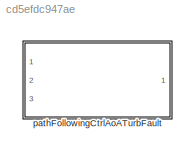
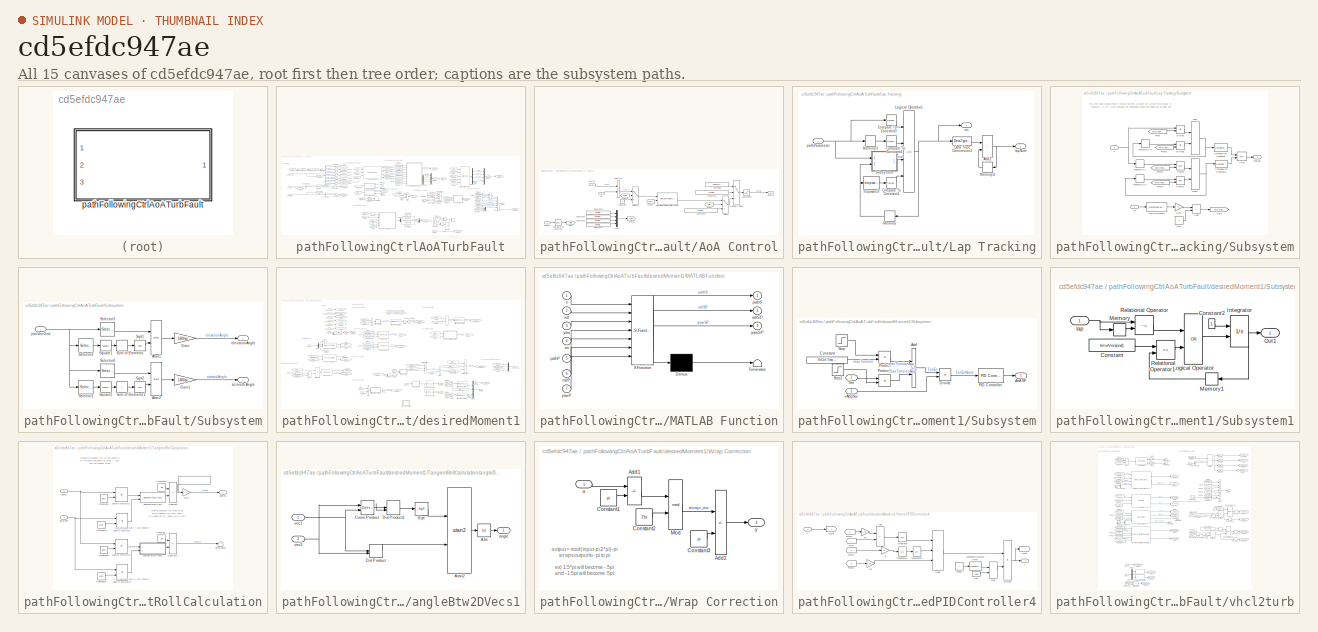
[diagram: thumbnail index - all 15 canvases of the model, root first then tree order]
MODEL slx_cd5efdc947ae
KIND library
CONFIG AbsTol = auto
CONFIG EnableMultiTasking = off
CONFIG FixedStep = auto
CONFIG MaxStep = auto
CONFIG MinStep = auto
CONFIG RelTol = 1e-3
CONFIG SampleTimeConstraint = Unconstrained
CONFIG Solver = VariableStepAuto
CONFIG SolverName = VariableStepAuto
CONFIG StartTime = 0.0
CONFIG StopTime = 10.0
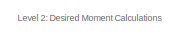
[diagram: pathFollowingCtrlAoATurbFault - part 1/4, top center region]
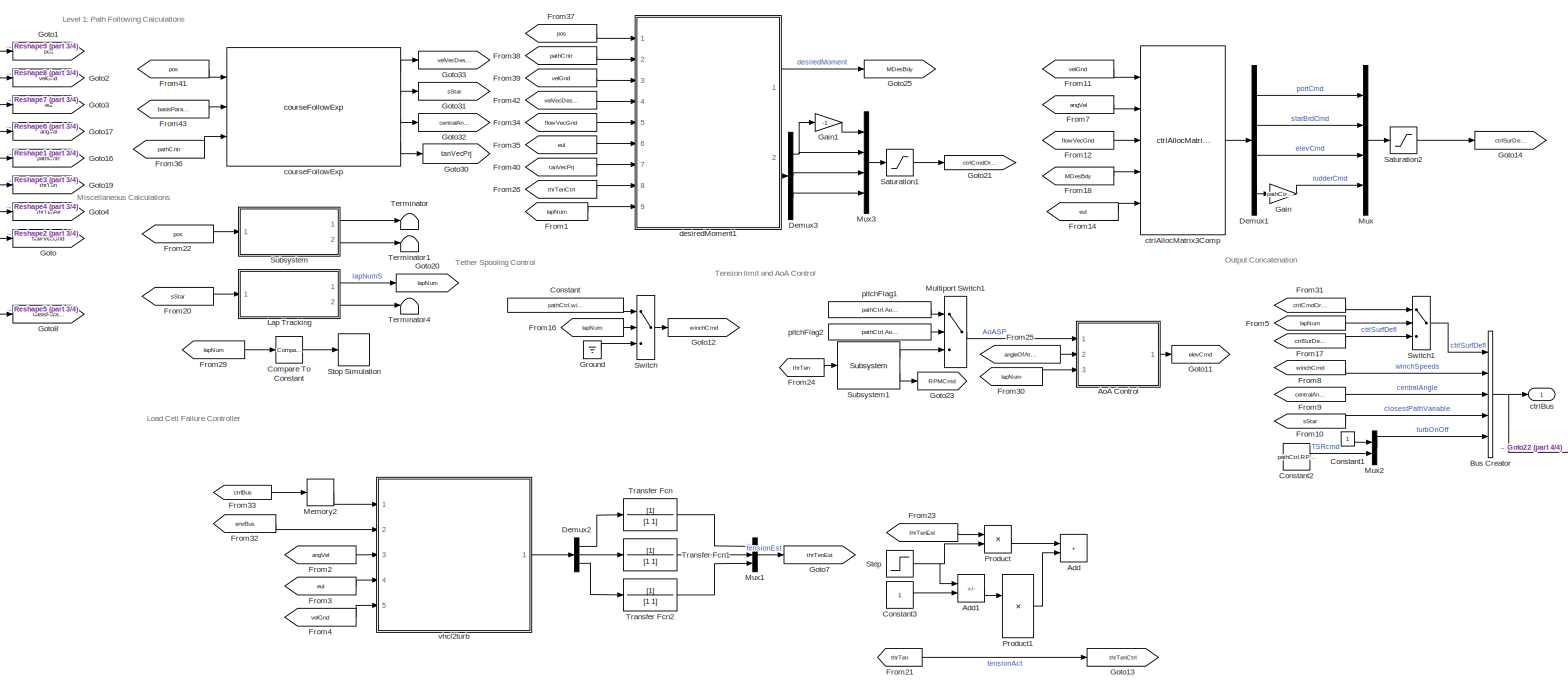
[diagram: pathFollowingCtrlAoATurbFault - part 2/4, center side, full height]
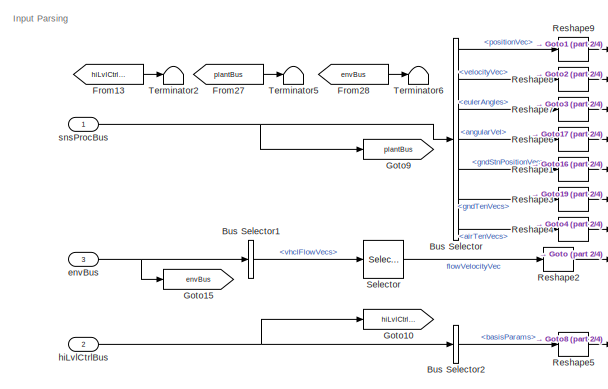
[diagram: pathFollowingCtrlAoATurbFault - part 3/4, top left region]
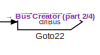
[diagram: pathFollowingCtrlAoATurbFault - part 4/4, bottom right region]
BLOCK [SubSystem] pathFollowingCtrlAoATurbFault
  InitFcn = initializeBussesFromBlock(gcb)
  LoadFcn = initializeBussesFromBlock(gcb)
  MinAlgLoopOccurrences = on
  Ports = [3, 1]
  RequestExecContextInheritance = off
  StartFcn = initializeBussesFromBlock(gcb)
  VariantControl = strcmpi(FLIGHTCONTROLLER,'pathFollowingControllerManta')
BLOCK [Sum] pathFollowingCtrlAoATurbFault/Add
  Commented = on
  IconShape = rectangular
  Ports = [2, 1]
BLOCK [Sum] pathFollowingCtrlAoATurbFault/Add1
  Commented = on
  IconShape = rectangular
  Inputs = -+
  Ports = [2, 1]
BLOCK [SubSystem] pathFollowingCtrlAoATurbFault/AoA Control
  Commented = on
  Ports = [3, 1]
  RequestExecContextInheritance = off
BLOCK [Inport] pathFollowingCtrlAoATurbFault/AoA Control/AoA
  Port = 2
BLOCK [Inport] pathFollowingCtrlAoATurbFault/AoA Control/AoA SP
BLOCK [Reference] pathFollowingCtrlAoATurbFault/AoA Control/Compare To Constant  REF=simulink/Logic and Bit
Operations/Compare
To Constant
  Ports = [1, 1]
  SourceBlock = simulink/Logic and Bit\nOperations/Compare\nTo Constant
  SourceProductBaseCode = SL
  SourceType = Compare To Constant
BLOCK [Constant] pathFollowingCtrlAoATurbFault/AoA Control/Constant
  Value = 0
BLOCK [Constant] pathFollowingCtrlAoATurbFault/AoA Control/Constant1
  Value = pathCtrl.elevatorConst.Value
BLOCK [Constant] pathFollowingCtrlAoATurbFault/AoA Control/Constant2
  Value = pathCtrl.elevatorConst.Value
BLOCK [Constant] pathFollowingCtrlAoATurbFault/AoA Control/Constant3
  Value = pathCtrl.elevCtrl.kp.Value
BLOCK [Constant] pathFollowingCtrlAoATurbFault/AoA Control/Constant4
  Value = pathCtrl.elevCtrl.ki.Value
BLOCK [Constant] pathFollowingCtrlAoATurbFault/AoA Control/Constant5
  Value = pathCtrl.elevCtrl.kd.Value
BLOCK [Constant] pathFollowingCtrlAoATurbFault/AoA Control/Constant6
  Value = pathCtrl.elevCtrl.tau.Value
BLOCK [From] pathFollowingCtrlAoATurbFault/AoA Control/From
  GotoTag = switch
BLOCK [From] pathFollowingCtrlAoATurbFault/AoA Control/From1
  GotoTag = switch
BLOCK [From] pathFollowingCtrlAoATurbFault/AoA Control/From2
  GotoTag = gains
BLOCK [Goto] pathFollowingCtrlAoATurbFault/AoA Control/Goto
  GotoTag = switch
BLOCK [Goto] pathFollowingCtrlAoATurbFault/AoA Control/Goto1
  GotoTag = gains
BLOCK [MultiPortSwitch] pathFollowingCtrlAoATurbFault/AoA Control/Multiport Switch
  DataPortIndices = {0,1}
  DataPortOrder = Specify indices
  InputSameDT = off
  Inputs = 2
  Ports = [3, 1]
  SaturateOnIntegerOverflow = off
BLOCK [Mux] pathFollowingCtrlAoATurbFault/AoA Control/Mux
  DisplayOption = bar
  Ports = [4, 1]
BLOCK [Saturate] pathFollowingCtrlAoATurbFault/AoA Control/Saturation
  LowerLimit = pathCtrl.elevCtrlMax.lowerLimit.Value
  UpperLimit = pathCtrl.elevCtrlMax.upperLimit.Value
BLOCK [Sum] pathFollowingCtrlAoATurbFault/AoA Control/Subtract
  IconShape = rectangular
  Inputs = -+
  Ports = [2, 1]
BLOCK [Switch] pathFollowingCtrlAoATurbFault/AoA Control/Switch
  Criteria = u2 > Threshold
  InputSameDT = off
  SaturateOnIntegerOverflow = off
  Threshold = .5
BLOCK [Switch] pathFollowingCtrlAoATurbFault/AoA Control/Switch1
  Criteria = u2 > Threshold
  InputSameDT = off
  SaturateOnIntegerOverflow = off
  Threshold = .5
BLOCK [Outport] pathFollowingCtrlAoATurbFault/AoA Control/elvCmd
BLOCK [Reference] pathFollowingCtrlAoATurbFault/AoA Control/filteredPIDControllerAWGS  REF=filteredPIDControllerAWGS_ul/filteredPIDControllerAWGS
  Ports = [2, 1]
  SourceBlock = filteredPIDControllerAWGS_ul/filteredPIDControllerAWGS
BLOCK [Inport] pathFollowingCtrlAoATurbFault/AoA Control/lapNum
  Port = 3
BLOCK [Constant] pathFollowingCtrlAoATurbFault/AoA Control/pitchFlag
  Value = pathCtrl.AoACtrl.Value
BLOCK [BusCreator] pathFollowingCtrlAoATurbFault/Bus Creator
  DisplayOption = bar
  InheritFromInputs = on
  Inputs = 5
  Ports = [5, 1]
BLOCK [BusSelector] pathFollowingCtrlAoATurbFault/Bus Selector
  OutputSignals = positionVec,velocityVec,eulerAngles,angularVel,gndStnPositionVec,gndTenVecs,airTenVecs
  Ports = [1, 7]
BLOCK [BusSelector] pathFollowingCtrlAoATurbFault/Bus Selector1
  OutputSignals = vhclFlowVecs
  Ports = [1, 1]
BLOCK [BusSelector] pathFollowingCtrlAoATurbFault/Bus Selector2
  OutputSignals = basisParams
  Ports = [1, 1]
BLOCK [Reference] pathFollowingCtrlAoATurbFault/Compare To Constant  REF=simulink/Logic and Bit
Operations/Compare
To Constant
  Ports = [1, 1]
  SourceBlock = simulink/Logic and Bit\nOperations/Compare\nTo Constant
  SourceProductBaseCode = SL
  SourceType = Compare To Constant
BLOCK [Constant] pathFollowingCtrlAoATurbFault/Constant
  Value = pathCtrl.winchSpeedIn.Value
BLOCK [Constant] pathFollowingCtrlAoATurbFault/Constant1
BLOCK [Constant] pathFollowingCtrlAoATurbFault/Constant2
  Value = pathCtrl.RPMConst.Value
BLOCK [Constant] pathFollowingCtrlAoATurbFault/Constant3
  Commented = on
BLOCK [Demux] pathFollowingCtrlAoATurbFault/Demux1
  Ports = [1, 4]
BLOCK [Demux] pathFollowingCtrlAoATurbFault/Demux2
  Commented = on
  Outputs = 3
  Ports = [1, 3]
BLOCK [Demux] pathFollowingCtrlAoATurbFault/Demux3
  Outputs = 3
  Ports = [1, 3]
BLOCK [From] pathFollowingCtrlAoATurbFault/From1
  GotoTag = lapNum
BLOCK [From] pathFollowingCtrlAoATurbFault/From10
  GotoTag = sStar
BLOCK [From] pathFollowingCtrlAoATurbFault/From11
  GotoTag = velGnd
BLOCK [From] pathFollowingCtrlAoATurbFault/From12
  GotoTag = flowVecGnd
BLOCK [From] pathFollowingCtrlAoATurbFault/From13
  GotoTag = hiLvlCtrlBus
BLOCK [From] pathFollowingCtrlAoATurbFault/From14
  GotoTag = eul
BLOCK [From] pathFollowingCtrlAoATurbFault/From16
  GotoTag = lapNum
BLOCK [From] pathFollowingCtrlAoATurbFault/From17
  GotoTag = ctrlSurDefl
BLOCK [From] pathFollowingCtrlAoATurbFault/From18
  GotoTag = MDesBdy
BLOCK [From] pathFollowingCtrlAoATurbFault/From2
  Commented = on
  GotoTag = angVel
BLOCK [From] pathFollowingCtrlAoATurbFault/From20
  GotoTag = sStar
BLOCK [From] pathFollowingCtrlAoATurbFault/From21
  GotoTag = thrTen
BLOCK [From] pathFollowingCtrlAoATurbFault/From22
  GotoTag = pos
BLOCK [From] pathFollowingCtrlAoATurbFault/From23
  Commented = on
  GotoTag = thrTenEst
BLOCK [From] pathFollowingCtrlAoATurbFault/From24
  Commented = on
  GotoTag = thrTen
BLOCK [From] pathFollowingCtrlAoATurbFault/From25
  Commented = on
  GotoTag = angleOfAttack
BLOCK [From] pathFollowingCtrlAoATurbFault/From26
  GotoTag = thrTenCtrl
BLOCK [From] pathFollowingCtrlAoATurbFault/From27
  GotoTag = plantBus
BLOCK [From] pathFollowingCtrlAoATurbFault/From28
  GotoTag = envBus
BLOCK [From] pathFollowingCtrlAoATurbFault/From29
  GotoTag = lapNum
BLOCK [From] pathFollowingCtrlAoATurbFault/From3
  Commented = on
  GotoTag = eul
BLOCK [From] pathFollowingCtrlAoATurbFault/From30
  Commented = on
  GotoTag = lapNum
BLOCK [From] pathFollowingCtrlAoATurbFault/From31
  GotoTag = ctrlCmdOrient
BLOCK [From] pathFollowingCtrlAoATurbFault/From32
  Commented = on
  GotoTag = envBus
BLOCK [From] pathFollowingCtrlAoATurbFault/From33
  Commented = on
  GotoTag = ctrlBus
BLOCK [From] pathFollowingCtrlAoATurbFault/From34
  GotoTag = flowVecGnd
BLOCK [From] pathFollowingCtrlAoATurbFault/From35
  GotoTag = eul
BLOCK [From] pathFollowingCtrlAoATurbFault/From36
  GotoTag = pathCntr
BLOCK [From] pathFollowingCtrlAoATurbFault/From37
  GotoTag = pos
BLOCK [From] pathFollowingCtrlAoATurbFault/From38
  GotoTag = pathCntr
BLOCK [From] pathFollowingCtrlAoATurbFault/From39
  GotoTag = velGnd
BLOCK [From] pathFollowingCtrlAoATurbFault/From4
  Commented = on
  GotoTag = velGnd
BLOCK [From] pathFollowingCtrlAoATurbFault/From40
  GotoTag = tanVecPrj
BLOCK [From] pathFollowingCtrlAoATurbFault/From41
  GotoTag = pos
BLOCK [From] pathFollowingCtrlAoATurbFault/From42
  GotoTag = velVecDesGnd
BLOCK [From] pathFollowingCtrlAoATurbFault/From43
  GotoTag = basisParams
BLOCK [From] pathFollowingCtrlAoATurbFault/From5
  GotoTag = lapNum
BLOCK [From] pathFollowingCtrlAoATurbFault/From7
  GotoTag = angVel
BLOCK [From] pathFollowingCtrlAoATurbFault/From8
  GotoTag = winchCmd
BLOCK [From] pathFollowingCtrlAoATurbFault/From9
  GotoTag = centralAngle
BLOCK [Gain] pathFollowingCtrlAoATurbFault/Gain
  Gain = pathCtrl.rudderGain.Value
BLOCK [Gain] pathFollowingCtrlAoATurbFault/Gain1
  Gain = -1
BLOCK [Goto] pathFollowingCtrlAoATurbFault/Goto
  GotoTag = flowVecGnd
BLOCK [Goto] pathFollowingCtrlAoATurbFault/Goto1
  GotoTag = pos
BLOCK [Goto] pathFollowingCtrlAoATurbFault/Goto10
  GotoTag = hiLvlCtrlBus
BLOCK [Goto] pathFollowingCtrlAoATurbFault/Goto11
  Commented = on
  GotoTag = elevCmd
BLOCK [Goto] pathFollowingCtrlAoATurbFault/Goto12
  GotoTag = winchCmd
BLOCK [Goto] pathFollowingCtrlAoATurbFault/Goto13
  GotoTag = thrTenCtrl
BLOCK [Goto] pathFollowingCtrlAoATurbFault/Goto14
  GotoTag = ctrlSurDefl
BLOCK [Goto] pathFollowingCtrlAoATurbFault/Goto15
  GotoTag = envBus
BLOCK [Goto] pathFollowingCtrlAoATurbFault/Goto16
  GotoTag = pathCntr
BLOCK [Goto] pathFollowingCtrlAoATurbFault/Goto17
  GotoTag = angVel
BLOCK [Goto] pathFollowingCtrlAoATurbFault/Goto19
  GotoTag = thrTen
BLOCK [Goto] pathFollowingCtrlAoATurbFault/Goto2
  GotoTag = velGnd
BLOCK [Goto] pathFollowingCtrlAoATurbFault/Goto20
  GotoTag = lapNum
BLOCK [Goto] pathFollowingCtrlAoATurbFault/Goto21
  GotoTag = ctrlCmdOrient
BLOCK [Goto] pathFollowingCtrlAoATurbFault/Goto22
  Commented = on
  GotoTag = ctrlBus
BLOCK [Goto] pathFollowingCtrlAoATurbFault/Goto23
  Commented = on
  GotoTag = RPMCmd
BLOCK [Goto] pathFollowingCtrlAoATurbFault/Goto25
  GotoTag = MDesBdy
BLOCK [Goto] pathFollowingCtrlAoATurbFault/Goto3
  GotoTag = eul
BLOCK [Goto] pathFollowingCtrlAoATurbFault/Goto30
  GotoTag = tanVecPrj
BLOCK [Goto] pathFollowingCtrlAoATurbFault/Goto31
  GotoTag = sStar
BLOCK [Goto] pathFollowingCtrlAoATurbFault/Goto32
  GotoTag = centralAngle
BLOCK [Goto] pathFollowingCtrlAoATurbFault/Goto33
  GotoTag = velVecDesGnd
BLOCK [Goto] pathFollowingCtrlAoATurbFault/Goto4
  Commented = on
  GotoTag = thrTenAir
BLOCK [Goto] pathFollowingCtrlAoATurbFault/Goto7
  Commented = on
  GotoTag = thrTenEst
BLOCK [Goto] pathFollowingCtrlAoATurbFault/Goto8
  GotoTag = basisParams
BLOCK [Goto] pathFollowingCtrlAoATurbFault/Goto9
  GotoTag = plantBus
BLOCK [Ground] pathFollowingCtrlAoATurbFault/Ground
BLOCK [SubSystem] pathFollowingCtrlAoATurbFault/Lap Tracking
  Ports = [1, 2]
  RequestExecContextInheritance = off
BLOCK [Sum] pathFollowingCtrlAoATurbFault/Lap Tracking/Add2
  IconShape = rectangular
  Ports = [2, 1]
BLOCK [Reference] pathFollowingCtrlAoATurbFault/Lap Tracking/Compare To Constant1  REF=simulink/Logic and Bit
Operations/Compare
To Constant
  Ports = [1, 1]
  SourceBlock = simulink/Logic and Bit\nOperations/Compare\nTo Constant
  SourceProductBaseCode = SL
  SourceType = Compare To Constant
BLOCK [Reference] pathFollowingCtrlAoATurbFault/Lap Tracking/Compare To Constant3  REF=simulink/Logic and Bit
Operations/Compare
To Constant
  Ports = [1, 1]
  SourceBlock = simulink/Logic and Bit\nOperations/Compare\nTo Constant
  SourceProductBaseCode = SL
  SourceType = Compare To Constant
BLOCK [Reference] pathFollowingCtrlAoATurbFault/Lap Tracking/Compare To Constant4  REF=simulink/Logic and Bit
Operations/Compare
To Constant
  Ports = [1, 1]
  SourceBlock = simulink/Logic and Bit\nOperations/Compare\nTo Constant
  SourceProductBaseCode = SL
  SourceType = Compare To Constant
BLOCK [DataTypeConversion] pathFollowingCtrlAoATurbFault/Lap Tracking/Data Type Conversion2
  OutDataTypeStr = double
  RndMeth = Floor
  SaturateOnIntegerOverflow = off
BLOCK [Logic] pathFollowingCtrlAoATurbFault/Lap Tracking/Logical Operator1
  AllPortsSameDT = off
  Inputs = 4
  OutDataTypeStr = boolean
  Ports = [4, 1]
BLOCK [Memory] pathFollowingCtrlAoATurbFault/Lap Tracking/Memory
  InitialCondition = false
BLOCK [Memory] pathFollowingCtrlAoATurbFault/Lap Tracking/Memory3
BLOCK [Memory] pathFollowingCtrlAoATurbFault/Lap Tracking/Memory4
BLOCK [SubSystem] pathFollowingCtrlAoATurbFault/Lap Tracking/Subsystem
  Ports = [2, 1]
  RequestExecContextInheritance = off
BLOCK [Logic] pathFollowingCtrlAoATurbFault/Lap Tracking/Subsystem/AND
  AllPortsSameDT = off
  OutDataTypeStr = boolean
  Ports = [2, 1]
BLOCK [Sum] pathFollowingCtrlAoATurbFault/Lap Tracking/Subsystem/Add
  IconShape = rectangular
  Ports = [2, 1]
BLOCK [DataTypeConversion] pathFollowingCtrlAoATurbFault/Lap Tracking/Subsystem/Cast To Double
  OutDataTypeStr = double
  RndMeth = Floor
  SaturateOnIntegerOverflow = off
BLOCK [Reference] pathFollowingCtrlAoATurbFault/Lap Tracking/Subsystem/Compare To Constant  REF=simulink/Logic and Bit
Operations/Compare
To Constant
  Ports = [1, 1]
  SourceBlock = simulink/Logic and Bit\nOperations/Compare\nTo Constant
  SourceProductBaseCode = SL
  SourceType = Compare To Constant
BLOCK [Reference] pathFollowingCtrlAoATurbFault/Lap Tracking/Subsystem/Compare To Constant1  REF=simulink/Logic and Bit
Operations/Compare
To Constant
  Ports = [1, 1]
  SourceBlock = simulink/Logic and Bit\nOperations/Compare\nTo Constant
  SourceProductBaseCode = SL
  SourceType = Compare To Constant
BLOCK [Product] pathFollowingCtrlAoATurbFault/Lap Tracking/Subsystem/Divide
  Inputs = **
  Ports = [2, 1]
BLOCK [Product] pathFollowingCtrlAoATurbFault/Lap Tracking/Subsystem/Divide1
  Inputs = **
  Ports = [2, 1]
BLOCK [From] pathFollowingCtrlAoATurbFault/Lap Tracking/Subsystem/From
  GotoTag = zeroIfReset
BLOCK [From] pathFollowingCtrlAoATurbFault/Lap Tracking/Subsystem/From1
  GotoTag = zeroIfReset
BLOCK [From] pathFollowingCtrlAoATurbFault/Lap Tracking/Subsystem/From2
  GotoTag = zeroIfReset
BLOCK [From] pathFollowingCtrlAoATurbFault/Lap Tracking/Subsystem/From3
  GotoTag = zeroIfReset
BLOCK [Gain] pathFollowingCtrlAoATurbFault/Lap Tracking/Subsystem/Gain
  Gain = -1
BLOCK [Goto] pathFollowingCtrlAoATurbFault/Lap Tracking/Subsystem/Goto
  GotoTag = zeroIfReset
BLOCK [MinMax] pathFollowingCtrlAoATurbFault/Lap Tracking/Subsystem/Max
  Function = max
  Inputs = 2
  Ports = [2, 1]
BLOCK [MinMax] pathFollowingCtrlAoATurbFault/Lap Tracking/Subsystem/Max1
  Inputs = 2
  Ports = [2, 1]
BLOCK [Constant] pathFollowingCtrlAoATurbFault/Lap Tracking/Subsystem/One
  OutDataTypeStr = Inherit: Inherit via back propagation
BLOCK [Math] pathFollowingCtrlAoATurbFault/Lap Tracking/Subsystem/Power
  Operator = pow
  Ports = [2, 1]
BLOCK [Math] pathFollowingCtrlAoATurbFault/Lap Tracking/Subsystem/Power1
  Operator = pow
  Ports = [2, 1]
BLOCK [Inport] pathFollowingCtrlAoATurbFault/Lap Tracking/Subsystem/S
BLOCK [Memory] pathFollowingCtrlAoATurbFault/Lap Tracking/Subsystem/memoryIC1
  InitialCondition = 1
BLOCK [Memory] pathFollowingCtrlAoATurbFault/Lap Tracking/Subsystem/memoryIC=0
BLOCK [Memory] pathFollowingCtrlAoATurbFault/Lap Tracking/Subsystem/memoryIC=1
  InitialCondition = 1
BLOCK [Outport] pathFollowingCtrlAoATurbFault/Lap Tracking/Subsystem/realLap
BLOCK [Inport] pathFollowingCtrlAoATurbFault/Lap Tracking/Subsystem/rst
  Port = 2
BLOCK [Outport] pathFollowingCtrlAoATurbFault/Lap Tracking/lapNum
  VectorParamsAs1DForOutWhenUnconnected = off
BLOCK [Inport] pathFollowingCtrlAoATurbFault/Lap Tracking/pathParameter
BLOCK [Outport] pathFollowingCtrlAoATurbFault/Lap Tracking/rst
  Port = 2
  VectorParamsAs1DForOutWhenUnconnected = off
BLOCK [Reference] pathFollowingCtrlAoATurbFault/Lap Tracking/stopwatch  REF=stopwatch_ul/stopwatch  (lib defined in slx_5231e8830116, slx_6b86a6863970)
  Ports = [1, 1]
  SourceBlock = stopwatch_ul/stopwatch
  SourceType = SubSystem
BLOCK [Memory] pathFollowingCtrlAoATurbFault/Memory2
  Commented = on
  InitialCondition = pathCtrl.initPathVar.Value
BLOCK [MultiPortSwitch] pathFollowingCtrlAoATurbFault/Multiport Switch1
  Commented = on
  DataPortIndices = {0,1}
  DataPortOrder = Specify indices
  InputSameDT = off
  Inputs = 2
  Ports = [3, 1]
  SaturateOnIntegerOverflow = off
BLOCK [Mux] pathFollowingCtrlAoATurbFault/Mux
  DisplayOption = bar
  Ports = [4, 1]
BLOCK [Mux] pathFollowingCtrlAoATurbFault/Mux1
  Commented = on
  DisplayOption = bar
  Inputs = 3
  Ports = [3, 1]
BLOCK [Mux] pathFollowingCtrlAoATurbFault/Mux2
  DisplayOption = bar
  Inputs = 2
  Ports = [2, 1]
BLOCK [Mux] pathFollowingCtrlAoATurbFault/Mux3
  DisplayOption = bar
  Ports = [4, 1]
BLOCK [Product] pathFollowingCtrlAoATurbFault/Product
  Commented = on
  Ports = [2, 1]
BLOCK [Product] pathFollowingCtrlAoATurbFault/Product1
  Commented = on
  Ports = [2, 1]
BLOCK [Reshape] pathFollowingCtrlAoATurbFault/Reshape1
  OutputDimensionality = Column vector (2-D)
  Ports = [1, 1]
BLOCK [Reshape] pathFollowingCtrlAoATurbFault/Reshape2
  OutputDimensionality = Column vector (2-D)
  Ports = [1, 1]
BLOCK [Reshape] pathFollowingCtrlAoATurbFault/Reshape3
  OutputDimensionality = Column vector (2-D)
  Ports = [1, 1]
BLOCK [Reshape] pathFollowingCtrlAoATurbFault/Reshape4
  OutputDimensionality = Column vector (2-D)
  Ports = [1, 1]
BLOCK [Reshape] pathFollowingCtrlAoATurbFault/Reshape5
  OutputDimensionality = Column vector (2-D)
  Ports = [1, 1]
BLOCK [Reshape] pathFollowingCtrlAoATurbFault/Reshape6
  OutputDimensionality = Column vector (2-D)
  Ports = [1, 1]
BLOCK [Reshape] pathFollowingCtrlAoATurbFault/Reshape7
  OutputDimensionality = Column vector (2-D)
  Ports = [1, 1]
BLOCK [Reshape] pathFollowingCtrlAoATurbFault/Reshape8
  OutputDimensionality = Column vector (2-D)
  Ports = [1, 1]
BLOCK [Reshape] pathFollowingCtrlAoATurbFault/Reshape9
  OutputDimensionality = Column vector (2-D)
  Ports = [1, 1]
BLOCK [Saturate] pathFollowingCtrlAoATurbFault/Saturation1
  LowerLimit = pathCtrl.controlSigMax.lowerLimit.Value
  UpperLimit = pathCtrl.controlSigMax.upperLimit.Value
BLOCK [Saturate] pathFollowingCtrlAoATurbFault/Saturation2
  LowerLimit = pathCtrl.controlSigMax.lowerLimit.Value
  UpperLimit = pathCtrl.controlSigMax.upperLimit.Value
BLOCK [Selector] pathFollowingCtrlAoATurbFault/Selector
  IndexOptions = Select all,Index vector (dialog)
  Indices = [1 3],5
  InputPortWidth = 3
  NumberOfDimensions = 2
  OutputSizes = 1,1
  Ports = [1, 1]
BLOCK [Step] pathFollowingCtrlAoATurbFault/Step
  Commented = on
  SampleTime = 0
  Time = tSwitch
BLOCK [Stop] pathFollowingCtrlAoATurbFault/Stop Simulation
BLOCK [SubSystem] pathFollowingCtrlAoATurbFault/Subsystem
  Ports = [1, 2]
  RequestExecContextInheritance = off
BLOCK [Trigonometry] pathFollowingCtrlAoATurbFault/Subsystem/Atan1
  Operator = atan2
  Ports = [2, 1]
BLOCK [Trigonometry] pathFollowingCtrlAoATurbFault/Subsystem/Atan2
  Operator = atan2
  Ports = [2, 1]
BLOCK [Gain] pathFollowingCtrlAoATurbFault/Subsystem/Gain
  Gain = 180/pi
BLOCK [Gain] pathFollowingCtrlAoATurbFault/Subsystem/Gain1
  Gain = 180/pi
BLOCK [Selector] pathFollowingCtrlAoATurbFault/Subsystem/Selector1
  IndexOptions = Index vector (dialog)
  Indices = 1
  InputPortWidth = 3
  OutputSizes = 1
  Ports = [1, 1]
BLOCK [Selector] pathFollowingCtrlAoATurbFault/Subsystem/Selector2
  IndexOptions = Index vector (dialog)
  Indices = [1 2]
  InputPortWidth = 3
  OutputSizes = 1
  Ports = [1, 1]
BLOCK [Selector] pathFollowingCtrlAoATurbFault/Subsystem/Selector3
  IndexOptions = Index vector (dialog)
  Indices = 3
  InputPortWidth = 3
  OutputSizes = 1
  Ports = [1, 1]
BLOCK [Selector] pathFollowingCtrlAoATurbFault/Subsystem/Selector4
  IndexOptions = Index vector (dialog)
  Indices = 2
  InputPortWidth = 3
  OutputSizes = 1
  Ports = [1, 1]
BLOCK [Sqrt] pathFollowingCtrlAoATurbFault/Subsystem/Sqrt1
BLOCK [Sqrt] pathFollowingCtrlAoATurbFault/Subsystem/Sqrt2
BLOCK [Math] pathFollowingCtrlAoATurbFault/Subsystem/Square1
  Operator = square
  Ports = [1, 1]
  SignedPower = on
BLOCK [Math] pathFollowingCtrlAoATurbFault/Subsystem/Square2
  Operator = square
  Ports = [1, 1]
  SignedPower = on
BLOCK [Sum] pathFollowingCtrlAoATurbFault/Subsystem/Sum of Elements
  IconShape = rectangular
  Inputs = +
  Ports = [1, 1]
BLOCK [Sum] pathFollowingCtrlAoATurbFault/Subsystem/Sum of Elements1
  IconShape = rectangular
  Inputs = +
  Ports = [1, 1]
BLOCK [Outport] pathFollowingCtrlAoATurbFault/Subsystem/azimuth Angle
  Port = 2
BLOCK [Outport] pathFollowingCtrlAoATurbFault/Subsystem/elevationAngle
BLOCK [Inport] pathFollowingCtrlAoATurbFault/Subsystem/posVecGnd
BLOCK [Reference] pathFollowingCtrlAoATurbFault/Subsystem1  REF=tensionLimitCtrl_cl/Subsystem
  Commented = on
  Ports = [1, 2]
  SourceBlock = tensionLimitCtrl_cl/Subsystem
  SourceType = SubSystem
BLOCK [Switch] pathFollowingCtrlAoATurbFault/Switch
  InputSameDT = off
  SaturateOnIntegerOverflow = off
  Threshold = fltCtrl.firstSpoolLap.Value
BLOCK [Switch] pathFollowingCtrlAoATurbFault/Switch1
  Criteria = u2 > Threshold
  InputSameDT = off
  SaturateOnIntegerOverflow = off
  Threshold = lapN
BLOCK [Terminator] pathFollowingCtrlAoATurbFault/Terminator
BLOCK [Terminator] pathFollowingCtrlAoATurbFault/Terminator1
BLOCK [Terminator] pathFollowingCtrlAoATurbFault/Terminator2
BLOCK [Terminator] pathFollowingCtrlAoATurbFault/Terminator4
BLOCK [Terminator] pathFollowingCtrlAoATurbFault/Terminator5
BLOCK [Terminator] pathFollowingCtrlAoATurbFault/Terminator6
BLOCK [TransferFcn] pathFollowingCtrlAoATurbFault/Transfer Fcn
  Commented = on
  Denominator = [1 1]
BLOCK [TransferFcn] pathFollowingCtrlAoATurbFault/Transfer Fcn1
  Commented = on
  Denominator = [1 1]
BLOCK [TransferFcn] pathFollowingCtrlAoATurbFault/Transfer Fcn2
  Commented = on
  Denominator = [1 1]
BLOCK [Reference] pathFollowingCtrlAoATurbFault/courseFollowExp  REF=courseFollowExp_cl/courseFollowExp
  Ports = [3, 4]
  SourceBlock = courseFollowExp_cl/courseFollowExp
  SourceType = SubSystem
BLOCK [Reference] pathFollowingCtrlAoATurbFault/ctrlAllocMatrix3Comp  REF=ctrlAllocMatrix3Comp_cl/ctrlAllocMatrix3Comp
  Ports = [5, 1]
  SourceBlock = ctrlAllocMatrix3Comp_cl/ctrlAllocMatrix3Comp
BLOCK [Outport] pathFollowingCtrlAoATurbFault/ctrlBus
  OutDataTypeStr = Bus: fltCtrlBus
  VectorParamsAs1DForOutWhenUnconnected = off
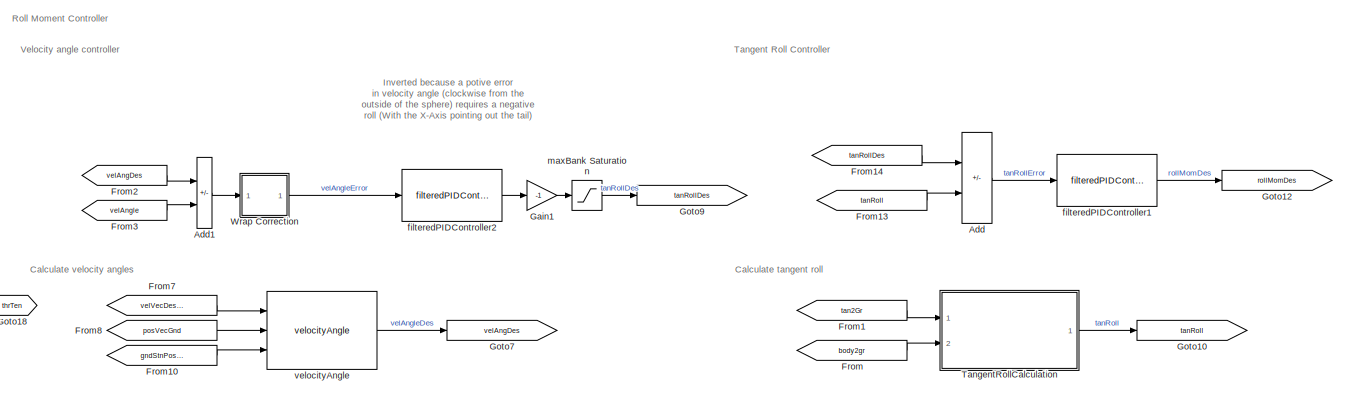
[diagram: pathFollowingCtrlAoATurbFault/desiredMoment1 - part 1/4, top center region]
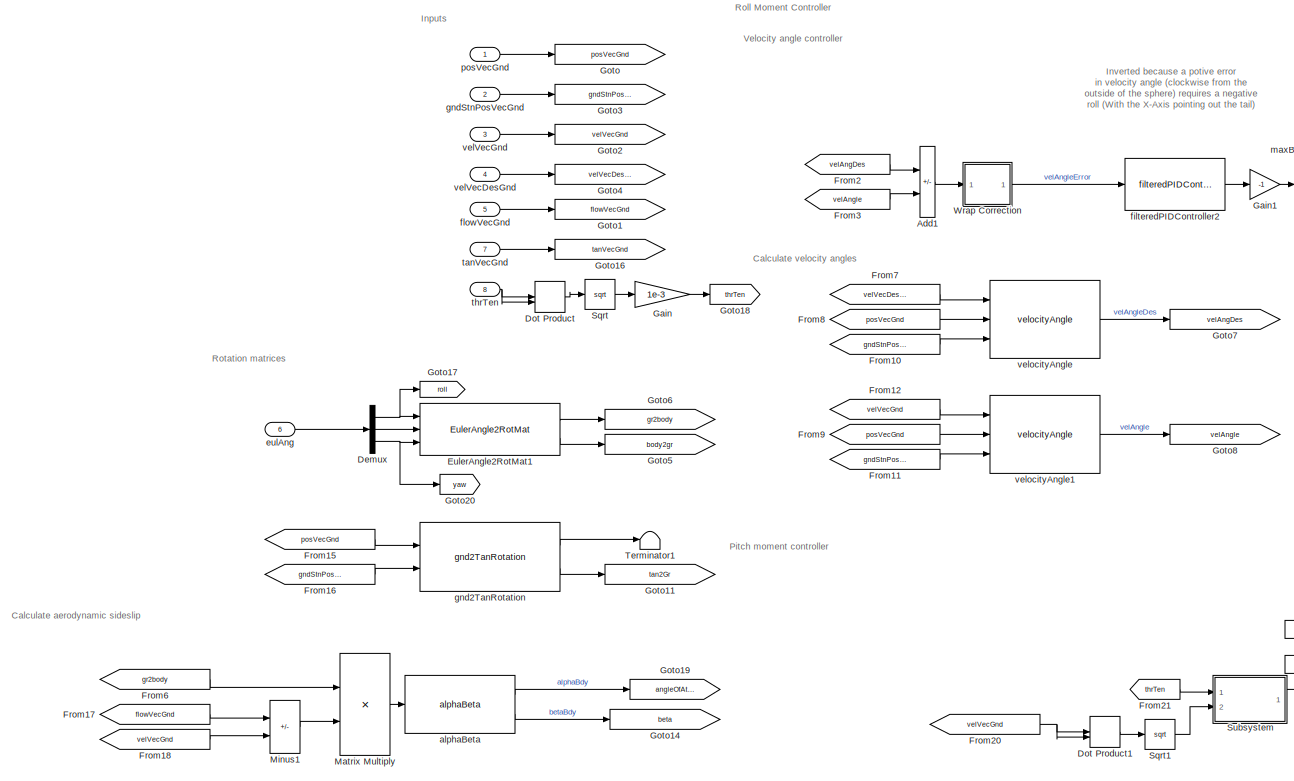
[diagram: pathFollowingCtrlAoATurbFault/desiredMoment1 - part 2/4, middle left region]
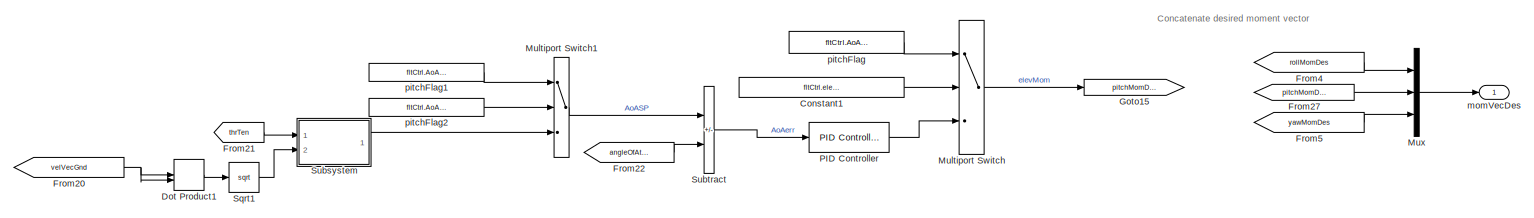
[diagram: pathFollowingCtrlAoATurbFault/desiredMoment1 - part 3/4, middle right region]
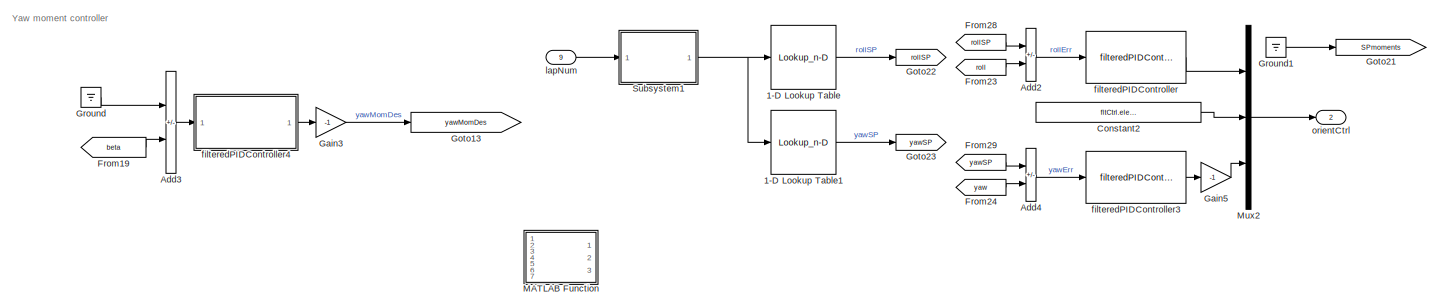
[diagram: pathFollowingCtrlAoATurbFault/desiredMoment1 - part 4/4, bottom center region]
BLOCK [SubSystem] pathFollowingCtrlAoATurbFault/desiredMoment1
  Ports = [9, 2]
  RequestExecContextInheritance = off
BLOCK [Lookup_n-D] pathFollowingCtrlAoATurbFault/desiredMoment1/1-D Lookup Table
  BreakpointsForDimension1 = timeVec
  InternalRulePriority = Speed
  NumberOfTableDimensions = 1
  Ports = [1, 1]
  RndMeth = Simplest
  Table = rollVec
BLOCK [Lookup_n-D] pathFollowingCtrlAoATurbFault/desiredMoment1/1-D Lookup Table1
  BreakpointsForDimension1 = timeVec
  InternalRulePriority = Speed
  NumberOfTableDimensions = 1
  Ports = [1, 1]
  RndMeth = Simplest
  Table = yawVec
BLOCK [Sum] pathFollowingCtrlAoATurbFault/desiredMoment1/Add
  IconShape = rectangular
  Inputs = +-
  Ports = [2, 1]
BLOCK [Sum] pathFollowingCtrlAoATurbFault/desiredMoment1/Add1
  IconShape = rectangular
  Inputs = +-
  Ports = [2, 1]
BLOCK [Sum] pathFollowingCtrlAoATurbFault/desiredMoment1/Add2
  IconShape = rectangular
  Inputs = +-
  Ports = [2, 1]
BLOCK [Sum] pathFollowingCtrlAoATurbFault/desiredMoment1/Add3
  IconShape = rectangular
  Inputs = +-
  Ports = [2, 1]
BLOCK [Sum] pathFollowingCtrlAoATurbFault/desiredMoment1/Add4
  IconShape = rectangular
  Inputs = +-
  Ports = [2, 1]
BLOCK [Constant] pathFollowingCtrlAoATurbFault/desiredMoment1/Constant1
  Value = fltCtrl.elevatorConst.Value
BLOCK [Constant] pathFollowingCtrlAoATurbFault/desiredMoment1/Constant2
  Value = fltCtrl.elevatorConst.Value
BLOCK [Demux] pathFollowingCtrlAoATurbFault/desiredMoment1/Demux
  Outputs = 3
  Ports = [1, 3]
BLOCK [DotProduct] pathFollowingCtrlAoATurbFault/desiredMoment1/Dot Product
  OutDataTypeStr = Inherit: Inherit via internal rule
BLOCK [DotProduct] pathFollowingCtrlAoATurbFault/desiredMoment1/Dot Product1
  OutDataTypeStr = Inherit: Inherit via internal rule
BLOCK [Reference] pathFollowingCtrlAoATurbFault/desiredMoment1/EulerAngle2RotMat1  REF=eulAng2RotMat_ul/EulerAngle2RotMat
  Ports = [3, 2]
  SourceBlock = eulAng2RotMat_ul/EulerAngle2RotMat
  SourceType = SubSystem
BLOCK [From] pathFollowingCtrlAoATurbFault/desiredMoment1/From
  GotoTag = body2gr
BLOCK [From] pathFollowingCtrlAoATurbFault/desiredMoment1/From1
  GotoTag = tan2Gr
BLOCK [From] pathFollowingCtrlAoATurbFault/desiredMoment1/From10
  GotoTag = gndStnPosVecGnd
BLOCK [From] pathFollowingCtrlAoATurbFault/desiredMoment1/From11
  GotoTag = gndStnPosVecGnd
BLOCK [From] pathFollowingCtrlAoATurbFault/desiredMoment1/From12
  GotoTag = velVecGnd
BLOCK [From] pathFollowingCtrlAoATurbFault/desiredMoment1/From13
  GotoTag = tanRoll
BLOCK [From] pathFollowingCtrlAoATurbFault/desiredMoment1/From14
  GotoTag = tanRollDes
BLOCK [From] pathFollowingCtrlAoATurbFault/desiredMoment1/From15
  GotoTag = posVecGnd
BLOCK [From] pathFollowingCtrlAoATurbFault/desiredMoment1/From16
  GotoTag = gndStnPosVecGnd
BLOCK [From] pathFollowingCtrlAoATurbFault/desiredMoment1/From17
  GotoTag = flowVecGnd
BLOCK [From] pathFollowingCtrlAoATurbFault/desiredMoment1/From18
  GotoTag = velVecGnd
BLOCK [From] pathFollowingCtrlAoATurbFault/desiredMoment1/From19
  GotoTag = beta
BLOCK [From] pathFollowingCtrlAoATurbFault/desiredMoment1/From2
  GotoTag = velAngDes
BLOCK [From] pathFollowingCtrlAoATurbFault/desiredMoment1/From20
  GotoTag = velVecGnd
BLOCK [From] pathFollowingCtrlAoATurbFault/desiredMoment1/From21
  GotoTag = thrTen
BLOCK [From] pathFollowingCtrlAoATurbFault/desiredMoment1/From22
  GotoTag = angleOfAttack
BLOCK [From] pathFollowingCtrlAoATurbFault/desiredMoment1/From23
  GotoTag = roll
BLOCK [From] pathFollowingCtrlAoATurbFault/desiredMoment1/From24
  GotoTag = yaw
BLOCK [From] pathFollowingCtrlAoATurbFault/desiredMoment1/From27
  GotoTag = pitchMomDes
BLOCK [From] pathFollowingCtrlAoATurbFault/desiredMoment1/From28
  GotoTag = rollSP
BLOCK [From] pathFollowingCtrlAoATurbFault/desiredMoment1/From29
  GotoTag = yawSP
BLOCK [From] pathFollowingCtrlAoATurbFault/desiredMoment1/From3
  GotoTag = velAngle
BLOCK [From] pathFollowingCtrlAoATurbFault/desiredMoment1/From4
  GotoTag = rollMomDes
BLOCK [From] pathFollowingCtrlAoATurbFault/desiredMoment1/From5
  GotoTag = yawMomDes
BLOCK [From] pathFollowingCtrlAoATurbFault/desiredMoment1/From6
  GotoTag = gr2body
BLOCK [From] pathFollowingCtrlAoATurbFault/desiredMoment1/From7
  GotoTag = velVecDesGnd
BLOCK [From] pathFollowingCtrlAoATurbFault/desiredMoment1/From8
  GotoTag = posVecGnd
BLOCK [From] pathFollowingCtrlAoATurbFault/desiredMoment1/From9
  GotoTag = posVecGnd
BLOCK [Gain] pathFollowingCtrlAoATurbFault/desiredMoment1/Gain
  Gain = 1e-3
BLOCK [Gain] pathFollowingCtrlAoATurbFault/desiredMoment1/Gain1
  Gain = -1
BLOCK [Gain] pathFollowingCtrlAoATurbFault/desiredMoment1/Gain3
  Gain = -1
BLOCK [Gain] pathFollowingCtrlAoATurbFault/desiredMoment1/Gain5
  Gain = -1
BLOCK [Goto] pathFollowingCtrlAoATurbFault/desiredMoment1/Goto
  GotoTag = posVecGnd
BLOCK [Goto] pathFollowingCtrlAoATurbFault/desiredMoment1/Goto1
  GotoTag = flowVecGnd
BLOCK [Goto] pathFollowingCtrlAoATurbFault/desiredMoment1/Goto10
  GotoTag = tanRoll
BLOCK [Goto] pathFollowingCtrlAoATurbFault/desiredMoment1/Goto11
  GotoTag = tan2Gr
BLOCK [Goto] pathFollowingCtrlAoATurbFault/desiredMoment1/Goto12
  GotoTag = rollMomDes
BLOCK [Goto] pathFollowingCtrlAoATurbFault/desiredMoment1/Goto13
  GotoTag = yawMomDes
BLOCK [Goto] pathFollowingCtrlAoATurbFault/desiredMoment1/Goto14
  GotoTag = beta
BLOCK [Goto] pathFollowingCtrlAoATurbFault/desiredMoment1/Goto15
  GotoTag = pitchMomDes
BLOCK [Goto] pathFollowingCtrlAoATurbFault/desiredMoment1/Goto16
  Commented = on
  GotoTag = tanVecGnd
BLOCK [Goto] pathFollowingCtrlAoATurbFault/desiredMoment1/Goto17
  Commented = on
  GotoTag = roll
BLOCK [Goto] pathFollowingCtrlAoATurbFault/desiredMoment1/Goto18
  GotoTag = thrTen
BLOCK [Goto] pathFollowingCtrlAoATurbFault/desiredMoment1/Goto19
  GotoTag = angleOfAttack
BLOCK [Goto] pathFollowingCtrlAoATurbFault/desiredMoment1/Goto2
  GotoTag = velVecGnd
BLOCK [Goto] pathFollowingCtrlAoATurbFault/desiredMoment1/Goto20
  Commented = on
  GotoTag = yaw
BLOCK [Goto] pathFollowingCtrlAoATurbFault/desiredMoment1/Goto21
  GotoTag = SPmoments
BLOCK [Goto] pathFollowingCtrlAoATurbFault/desiredMoment1/Goto22
  GotoTag = rollSP
BLOCK [Goto] pathFollowingCtrlAoATurbFault/desiredMoment1/Goto23
  GotoTag = yawSP
BLOCK [Goto] pathFollowingCtrlAoATurbFault/desiredMoment1/Goto3
  GotoTag = gndStnPosVecGnd
BLOCK [Goto] pathFollowingCtrlAoATurbFault/desiredMoment1/Goto4
  GotoTag = velVecDesGnd
BLOCK [Goto] pathFollowingCtrlAoATurbFault/desiredMoment1/Goto5
  GotoTag = body2gr
BLOCK [Goto] pathFollowingCtrlAoATurbFault/desiredMoment1/Goto6
  GotoTag = gr2body
BLOCK [Goto] pathFollowingCtrlAoATurbFault/desiredMoment1/Goto7
  GotoTag = velAngDes
BLOCK [Goto] pathFollowingCtrlAoATurbFault/desiredMoment1/Goto8
  GotoTag = velAngle
BLOCK [Goto] pathFollowingCtrlAoATurbFault/desiredMoment1/Goto9
  GotoTag = tanRollDes
BLOCK [Ground] pathFollowingCtrlAoATurbFault/desiredMoment1/Ground
BLOCK [Ground] pathFollowingCtrlAoATurbFault/desiredMoment1/Ground1
BLOCK [SubSystem] pathFollowingCtrlAoATurbFault/desiredMoment1/MATLAB Function
  Commented = on
  ErrorFcn = Stateflow.Translate.translate
  PermitHierarchicalResolution = ExplicitOnly
  Ports = [7, 3]
  RequestExecContextInheritance = off
  SFBlockType = MATLAB Function
  TreatAsAtomicUnit = on
BLOCK [Demux] pathFollowingCtrlAoATurbFault/desiredMoment1/MATLAB Function/ Demux 
  Outputs = 1
  Ports = [1, 1]
BLOCK [S-Function] pathFollowingCtrlAoATurbFault/desiredMoment1/MATLAB Function/ SFunction 
  EnableBusSupport = off
  FunctionName = sf_sfun
  PortCounts = [7 4]
  Ports = [7, 4]
  SFcnIsStateOwnerBlock = off
  SFunctionDeploymentMode = off
  Tag = Stateflow S-Function 2
BLOCK [Terminator] pathFollowingCtrlAoATurbFault/desiredMoment1/MATLAB Function/ Terminator 
BLOCK [Inport] pathFollowingCtrlAoATurbFault/desiredMoment1/MATLAB Function/en
  Port = 4
BLOCK [Inport] pathFollowingCtrlAoATurbFault/desiredMoment1/MATLAB Function/pathP
  Port = 5
BLOCK [Outport] pathFollowingCtrlAoATurbFault/desiredMoment1/MATLAB Function/pathS
BLOCK [Inport] pathFollowingCtrlAoATurbFault/desiredMoment1/MATLAB Function/roll
  Port = 2
BLOCK [Inport] pathFollowingCtrlAoATurbFault/desiredMoment1/MATLAB Function/rollP
  Port = 6
BLOCK [Outport] pathFollowingCtrlAoATurbFault/desiredMoment1/MATLAB Function/rollSP
  Port = 2
BLOCK [Inport] pathFollowingCtrlAoATurbFault/desiredMoment1/MATLAB Function/s
BLOCK [Inport] pathFollowingCtrlAoATurbFault/desiredMoment1/MATLAB Function/yaw
  Port = 3
BLOCK [Inport] pathFollowingCtrlAoATurbFault/desiredMoment1/MATLAB Function/yawP
  Port = 7
BLOCK [Outport] pathFollowingCtrlAoATurbFault/desiredMoment1/MATLAB Function/yawSP
  Port = 3
BLOCK [Product] pathFollowingCtrlAoATurbFault/desiredMoment1/Matrix Multiply
  Multiplication = Matrix(*)
  Ports = [2, 1]
BLOCK [Sum] pathFollowingCtrlAoATurbFault/desiredMoment1/Minus1
  IconShape = rectangular
  Inputs = +-
  Ports = [2, 1]
BLOCK [MultiPortSwitch] pathFollowingCtrlAoATurbFault/desiredMoment1/Multiport Switch
  DataPortIndices = {0,1}
  DataPortOrder = Specify indices
  InputSameDT = off
  Inputs = 2
  Ports = [3, 1]
  SaturateOnIntegerOverflow = off
BLOCK [MultiPortSwitch] pathFollowingCtrlAoATurbFault/desiredMoment1/Multiport Switch1
  DataPortIndices = {0,1}
  DataPortOrder = Specify indices
  InputSameDT = off
  Inputs = 2
  Ports = [3, 1]
  SaturateOnIntegerOverflow = off
BLOCK [Mux] pathFollowingCtrlAoATurbFault/desiredMoment1/Mux
  DisplayOption = bar
  Inputs = 3
  Ports = [3, 1]
BLOCK [Mux] pathFollowingCtrlAoATurbFault/desiredMoment1/Mux2
  DisplayOption = bar
  Inputs = 3
  Ports = [3, 1]
BLOCK [Reference] pathFollowingCtrlAoATurbFault/desiredMoment1/PID Controller  REF=simulink/Continuous/PID Controller
  Ports = [1, 1]
  SourceBlock = simulink/Continuous/PID Controller
  SourceProductBaseCode = SL
  SourceType = PID 1dof
BLOCK [Sqrt] pathFollowingCtrlAoATurbFault/desiredMoment1/Sqrt
BLOCK [Sqrt] pathFollowingCtrlAoATurbFault/desiredMoment1/Sqrt1
BLOCK [SubSystem] pathFollowingCtrlAoATurbFault/desiredMoment1/Subsystem
  Ports = [2, 1]
  RequestExecContextInheritance = off
BLOCK [Sum] pathFollowingCtrlAoATurbFault/desiredMoment1/Subsystem/Add
  IconShape = rectangular
  Inputs = +-
  Ports = [2, 1]
BLOCK [Outport] pathFollowingCtrlAoATurbFault/desiredMoment1/Subsystem/AoA SP
BLOCK [Constant] pathFollowingCtrlAoATurbFault/desiredMoment1/Subsystem/Constant
  Value = fltCtrl.Tmax.Value
BLOCK [Product] pathFollowingCtrlAoATurbFault/desiredMoment1/Subsystem/Divide
  Inputs = */
  Ports = [2, 1]
BLOCK [Reference] pathFollowingCtrlAoATurbFault/desiredMoment1/Subsystem/PID Controller  REF=simulink/Continuous/PID Controller
  Ports = [1, 1]
  SourceBlock = simulink/Continuous/PID Controller
  SourceProductBaseCode = SL
  SourceType = PID 1dof
BLOCK [Product] pathFollowingCtrlAoATurbFault/desiredMoment1/Subsystem/Product
  Ports = [2, 1]
BLOCK [Product] pathFollowingCtrlAoATurbFault/desiredMoment1/Subsystem/Product1
  Ports = [2, 1]
BLOCK [Step] pathFollowingCtrlAoATurbFault/desiredMoment1/Subsystem/Step
  After = .9
  Before = 1
  SampleTime = 0
  Time = tSwitch
BLOCK [Step] pathFollowingCtrlAoATurbFault/desiredMoment1/Subsystem/Step1
  After = 1.05
  Before = 1
  SampleTime = 0
  Time = 0
BLOCK [Inport] pathFollowingCtrlAoATurbFault/desiredMoment1/Subsystem/Tthr
BLOCK [Inport] pathFollowingCtrlAoATurbFault/desiredMoment1/Subsystem/vAppSqr
  Port = 2
BLOCK [SubSystem] pathFollowingCtrlAoATurbFault/desiredMoment1/Subsystem1
  Ports = [1, 1]
  RequestExecContextInheritance = off
BLOCK [Constant] pathFollowingCtrlAoATurbFault/desiredMoment1/Subsystem1/Constant
  Value = timeVec(end)
BLOCK [Constant] pathFollowingCtrlAoATurbFault/desiredMoment1/Subsystem1/Constant2
BLOCK [Integrator] pathFollowingCtrlAoATurbFault/desiredMoment1/Subsystem1/Integrator
  ExternalReset = rising
  Ports = [2, 1]
BLOCK [Logic] pathFollowingCtrlAoATurbFault/desiredMoment1/Subsystem1/Logical Operator
  AllPortsSameDT = off
  Operator = OR
  OutDataTypeStr = boolean
  Ports = [2, 1]
BLOCK [Memory] pathFollowingCtrlAoATurbFault/desiredMoment1/Subsystem1/Memory
BLOCK [Memory] pathFollowingCtrlAoATurbFault/desiredMoment1/Subsystem1/Memory1
  Commented = through
BLOCK [Outport] pathFollowingCtrlAoATurbFault/desiredMoment1/Subsystem1/Out1
BLOCK [RelationalOperator] pathFollowingCtrlAoATurbFault/desiredMoment1/Subsystem1/Relational Operator
  InputSameDT = off
  Operator = ~=
  OutDataTypeStr = boolean
  Ports = [2, 1]
  RndMeth = Simplest
BLOCK [RelationalOperator] pathFollowingCtrlAoATurbFault/desiredMoment1/Subsystem1/Relational Operator1
  InputSameDT = off
  Operator = ==
  OutDataTypeStr = boolean
  Ports = [2, 1]
  RndMeth = Simplest
BLOCK [Inport] pathFollowingCtrlAoATurbFault/desiredMoment1/Subsystem1/lap
BLOCK [Sum] pathFollowingCtrlAoATurbFault/desiredMoment1/Subtract
  IconShape = rectangular
  Inputs = +-
  Ports = [2, 1]
BLOCK [SubSystem] pathFollowingCtrlAoATurbFault/desiredMoment1/TangentRollCalculation
  Ports = [2, 1]
  RequestExecContextInheritance = off
BLOCK [Constant] pathFollowingCtrlAoATurbFault/desiredMoment1/TangentRollCalculation/Constant1
  Value = pi/2
BLOCK [Constant] pathFollowingCtrlAoATurbFault/desiredMoment1/TangentRollCalculation/Constant2
  Value = pi/2
BLOCK [Constant] pathFollowingCtrlAoATurbFault/desiredMoment1/TangentRollCalculation/Constant3
  Value = [0 1 0]'
BLOCK [Constant] pathFollowingCtrlAoATurbFault/desiredMoment1/TangentRollCalculation/Constant4
  Value = [0 0 1]'
BLOCK [Constant] pathFollowingCtrlAoATurbFault/desiredMoment1/TangentRollCalculation/Constant5
  Value = [1 0 0]'
BLOCK [Constant] pathFollowingCtrlAoATurbFault/desiredMoment1/TangentRollCalculation/Constant6
  Value = [0 0 1]'
BLOCK [Gain] pathFollowingCtrlAoATurbFault/desiredMoment1/TangentRollCalculation/Gain
  Gain = -1
BLOCK [Product] pathFollowingCtrlAoATurbFault/desiredMoment1/TangentRollCalculation/Matrix Multiply
  Multiplication = Matrix(*)
  Ports = [2, 1]
BLOCK [Product] pathFollowingCtrlAoATurbFault/desiredMoment1/TangentRollCalculation/Matrix Multiply1
  Multiplication = Matrix(*)
  Ports = [2, 1]
BLOCK [Product] pathFollowingCtrlAoATurbFault/desiredMoment1/TangentRollCalculation/Matrix Multiply2
  Multiplication = Matrix(*)
  Ports = [2, 1]
BLOCK [Product] pathFollowingCtrlAoATurbFault/desiredMoment1/TangentRollCalculation/Matrix Multiply3
  Multiplication = Matrix(*)
  Ports = [2, 1]
BLOCK [Sum] pathFollowingCtrlAoATurbFault/desiredMoment1/TangentRollCalculation/Subtract
  IconShape = rectangular
  Inputs = +-
  Ports = [2, 1]
BLOCK [Sum] pathFollowingCtrlAoATurbFault/desiredMoment1/TangentRollCalculation/Subtract1
  IconShape = rectangular
  Inputs = +-
  Ports = [2, 1]
BLOCK [Terminator] pathFollowingCtrlAoATurbFault/desiredMoment1/TangentRollCalculation/Terminator
BLOCK [Reference] pathFollowingCtrlAoATurbFault/desiredMoment1/TangentRollCalculation/angleBtw2DVecs  REF=angleBtw2Vecs_ul/angleBtw2DVecs
  Ports = [2, 1]
  SourceBlock = angleBtw2Vecs_ul/angleBtw2DVecs
  SourceType = SubSystem
BLOCK [SubSystem] pathFollowingCtrlAoATurbFault/desiredMoment1/TangentRollCalculation/angleBtw2DVecs1
  Ports = [2, 1]
  RequestExecContextInheritance = off
BLOCK [Abs] pathFollowingCtrlAoATurbFault/desiredMoment1/TangentRollCalculation/angleBtw2DVecs1/Abs
  SaturateOnIntegerOverflow = off
BLOCK [Trigonometry] pathFollowingCtrlAoATurbFault/desiredMoment1/TangentRollCalculation/angleBtw2DVecs1/Atan2
  Operator = atan2
  Ports = [2, 1]
BLOCK [Reference] pathFollowingCtrlAoATurbFault/desiredMoment1/TangentRollCalculation/angleBtw2DVecs1/Cross Product  REF=vrlib/Utilities/Cross Product
  Ports = [2, 1]
  SourceBlock = vrlib/Utilities/Cross Product
  SourceProductBaseCode = VR
  SourceType = Cross Product
BLOCK [DotProduct] pathFollowingCtrlAoATurbFault/desiredMoment1/TangentRollCalculation/angleBtw2DVecs1/Dot Product
  OutDataTypeStr = Inherit: Inherit via internal rule
BLOCK [DotProduct] pathFollowingCtrlAoATurbFault/desiredMoment1/TangentRollCalculation/angleBtw2DVecs1/Dot Product1
  OutDataTypeStr = Inherit: Inherit via internal rule
BLOCK [Sqrt] pathFollowingCtrlAoATurbFault/desiredMoment1/TangentRollCalculation/angleBtw2DVecs1/Sqrt
BLOCK [Outport] pathFollowingCtrlAoATurbFault/desiredMoment1/TangentRollCalculation/angleBtw2DVecs1/angle
  VectorParamsAs1DForOutWhenUnconnected = off
BLOCK [Inport] pathFollowingCtrlAoATurbFault/desiredMoment1/TangentRollCalculation/angleBtw2DVecs1/vec1
BLOCK [Inport] pathFollowingCtrlAoATurbFault/desiredMoment1/TangentRollCalculation/angleBtw2DVecs1/vec2
  Port = 2
BLOCK [Inport] pathFollowingCtrlAoATurbFault/desiredMoment1/TangentRollCalculation/bdy2Inert
  Port = 2
BLOCK [Inport] pathFollowingCtrlAoATurbFault/desiredMoment1/TangentRollCalculation/tan2Gr
BLOCK [Outport] pathFollowingCtrlAoATurbFault/desiredMoment1/TangentRollCalculation/tanRoll
  VectorParamsAs1DForOutWhenUnconnected = off
BLOCK [Terminator] pathFollowingCtrlAoATurbFault/desiredMoment1/Terminator1
BLOCK [SubSystem] pathFollowingCtrlAoATurbFault/desiredMoment1/Wrap Correction
  Ports = [1, 1]
  RequestExecContextInheritance = off
BLOCK [Sum] pathFollowingCtrlAoATurbFault/desiredMoment1/Wrap Correction/Add1
  IconShape = rectangular
  Inputs = +-
  Ports = [2, 1]
BLOCK [Sum] pathFollowingCtrlAoATurbFault/desiredMoment1/Wrap Correction/Add2
  IconShape = rectangular
  Inputs = +-
  Ports = [2, 1]
BLOCK [Constant] pathFollowingCtrlAoATurbFault/desiredMoment1/Wrap Correction/Constant1
  Value = pi
BLOCK [Constant] pathFollowingCtrlAoATurbFault/desiredMoment1/Wrap Correction/Constant2
  Value = 2*pi
BLOCK [Constant] pathFollowingCtrlAoATurbFault/desiredMoment1/Wrap Correction/Constant3
  Value = pi
BLOCK [Math] pathFollowingCtrlAoATurbFault/desiredMoment1/Wrap Correction/Mod
  Operator = mod
  Ports = [2, 1]
  SignedPower = on
BLOCK [Inport] pathFollowingCtrlAoATurbFault/desiredMoment1/Wrap Correction/u
BLOCK [Outport] pathFollowingCtrlAoATurbFault/desiredMoment1/Wrap Correction/y
  VectorParamsAs1DForOutWhenUnconnected = off
BLOCK [Reference] pathFollowingCtrlAoATurbFault/desiredMoment1/alphaBeta  REF=alphaBeta_ul/alphaBeta
  Ports = [1, 2]
  SourceBlock = alphaBeta_ul/alphaBeta
  SourceType = SubSystem
BLOCK [Inport] pathFollowingCtrlAoATurbFault/desiredMoment1/eulAng
  Port = 6
BLOCK [Reference] pathFollowingCtrlAoATurbFault/desiredMoment1/filteredPIDController  REF=filteredPIDController_ul/filteredPIDController
  Ports = [1, 1]
  SourceBlock = filteredPIDController_ul/filteredPIDController
BLOCK [Reference] pathFollowingCtrlAoATurbFault/desiredMoment1/filteredPIDController1  REF=filteredPIDController_ul/filteredPIDController
  Ports = [1, 1]
  SourceBlock = filteredPIDController_ul/filteredPIDController
BLOCK [Reference] pathFollowingCtrlAoATurbFault/desiredMoment1/filteredPIDController2  REF=filteredPIDController_ul/filteredPIDController
  Ports = [1, 1]
  SourceBlock = filteredPIDController_ul/filteredPIDController
BLOCK [Reference] pathFollowingCtrlAoATurbFault/desiredMoment1/filteredPIDController3  REF=filteredPIDController_ul/filteredPIDController
  Ports = [1, 1]
  SourceBlock = filteredPIDController_ul/filteredPIDController
BLOCK [SubSystem] pathFollowingCtrlAoATurbFault/desiredMoment1/filteredPIDController4
  Ports = [1, 1]
  RequestExecContextInheritance = off
BLOCK [Sum] pathFollowingCtrlAoATurbFault/desiredMoment1/filteredPIDController4/Add
  IconShape = rectangular
  Inputs = +-
  Ports = [2, 1]
BLOCK [Sum] pathFollowingCtrlAoATurbFault/desiredMoment1/filteredPIDController4/Add1
  IconShape = rectangular
  Inputs = +++
  Ports = [3, 1]
BLOCK [Product] pathFollowingCtrlAoATurbFault/desiredMoment1/filteredPIDController4/Divide
  Inputs = */
  Ports = [2, 1]
BLOCK [From] pathFollowingCtrlAoATurbFault/desiredMoment1/filteredPIDController4/From
  GotoTag = y
BLOCK [From] pathFollowingCtrlAoATurbFault/desiredMoment1/filteredPIDController4/From1
  GotoTag = u
BLOCK [From] pathFollowingCtrlAoATurbFault/desiredMoment1/filteredPIDController4/From2
  GotoTag = u
BLOCK [From] pathFollowingCtrlAoATurbFault/desiredMoment1/filteredPIDController4/From3
  GotoTag = u
BLOCK [Goto] pathFollowingCtrlAoATurbFault/desiredMoment1/filteredPIDController4/Goto
  GotoTag = y
BLOCK [Goto] pathFollowingCtrlAoATurbFault/desiredMoment1/filteredPIDController4/Goto1
  GotoTag = u
BLOCK [Integrator] pathFollowingCtrlAoATurbFault/desiredMoment1/filteredPIDController4/Integrator
  Ports = [1, 1]
BLOCK [Integrator] pathFollowingCtrlAoATurbFault/desiredMoment1/filteredPIDController4/Integrator1
  Ports = [1, 1]
BLOCK [Integrator] pathFollowingCtrlAoATurbFault/desiredMoment1/filteredPIDController4/Integrator2
  Ports = [1, 1]
BLOCK [MinMax] pathFollowingCtrlAoATurbFault/desiredMoment1/filteredPIDController4/Max
  Function = max
  Inputs = 2
  Ports = [2, 1]
BLOCK [SampleTimeMath] pathFollowingCtrlAoATurbFault/desiredMoment1/filteredPIDController4/Weighted Sample Time
  TsampMathOp = Ts Only
BLOCK [Constant] pathFollowingCtrlAoATurbFault/desiredMoment1/filteredPIDController4/const
BLOCK [Gain] pathFollowingCtrlAoATurbFault/desiredMoment1/filteredPIDController4/kd
  Gain = kd
BLOCK [Gain] pathFollowingCtrlAoATurbFault/desiredMoment1/filteredPIDController4/ki
  Gain = ki
BLOCK [Gain] pathFollowingCtrlAoATurbFault/desiredMoment1/filteredPIDController4/kp
  Gain = kp
BLOCK [Constant] pathFollowingCtrlAoATurbFault/desiredMoment1/filteredPIDController4/tau
  Value = Value
BLOCK [Inport] pathFollowingCtrlAoATurbFault/desiredMoment1/filteredPIDController4/u
  PortDimensions = 1
BLOCK [Outport] pathFollowingCtrlAoATurbFault/desiredMoment1/filteredPIDController4/y
  PortDimensions = 1
  VectorParamsAs1DForOutWhenUnconnected = off
BLOCK [Inport] pathFollowingCtrlAoATurbFault/desiredMoment1/flowVecGnd
  Port = 5
BLOCK [Reference] pathFollowingCtrlAoATurbFault/desiredMoment1/gnd2TanRotation  REF=gnd2TanRotation_ul/gnd2TanRotation
  Ports = [2, 2]
  SourceBlock = gnd2TanRotation_ul/gnd2TanRotation
  SourceType = SubSystem
BLOCK [Inport] pathFollowingCtrlAoATurbFault/desiredMoment1/gndStnPosVecGnd
  Port = 2
BLOCK [Inport] pathFollowingCtrlAoATurbFault/desiredMoment1/lapNum
  Port = 9
BLOCK [Saturate] pathFollowingCtrlAoATurbFault/desiredMoment1/maxBank Saturation
  LowerLimit = pathCtrl.maxBank.lowerLimit.Value
  UpperLimit = pathCtrl.maxBank.upperLimit.Value
BLOCK [Outport] pathFollowingCtrlAoATurbFault/desiredMoment1/momVecDes
  VectorParamsAs1DForOutWhenUnconnected = off
BLOCK [Outport] pathFollowingCtrlAoATurbFault/desiredMoment1/orientCtrl
  Port = 2
BLOCK [Constant] pathFollowingCtrlAoATurbFault/desiredMoment1/pitchFlag
  Value = fltCtrl.AoACtrl.Value
BLOCK [Constant] pathFollowingCtrlAoATurbFault/desiredMoment1/pitchFlag1
  Value = fltCtrl.AoASP.Value
BLOCK [Constant] pathFollowingCtrlAoATurbFault/desiredMoment1/pitchFlag2
  Value = fltCtrl.AoAConst.Value
BLOCK [Inport] pathFollowingCtrlAoATurbFault/desiredMoment1/posVecGnd
BLOCK [Inport] pathFollowingCtrlAoATurbFault/desiredMoment1/tanVecGnd
  Port = 7
BLOCK [Inport] pathFollowingCtrlAoATurbFault/desiredMoment1/thrTen
  Port = 8
BLOCK [Inport] pathFollowingCtrlAoATurbFault/desiredMoment1/velVecDesGnd
  Port = 4
BLOCK [Inport] pathFollowingCtrlAoATurbFault/desiredMoment1/velVecGnd
  Port = 3
BLOCK [Reference] pathFollowingCtrlAoATurbFault/desiredMoment1/velocityAngle  REF=velocityAngle_ul/velocityAngle
  Ports = [3, 1]
  SourceBlock = velocityAngle_ul/velocityAngle
  SourceType = SubSystem
BLOCK [Reference] pathFollowingCtrlAoATurbFault/desiredMoment1/velocityAngle1  REF=velocityAngle_ul/velocityAngle
  Ports = [3, 1]
  SourceBlock = velocityAngle_ul/velocityAngle
  SourceType = SubSystem
BLOCK [Inport] pathFollowingCtrlAoATurbFault/envBus
  OutDataTypeStr = Bus: envBus
  Port = 3
BLOCK [Inport] pathFollowingCtrlAoATurbFault/hiLvlCtrlBus
  OutDataTypeStr = Bus: hiLvlCtrlBus
  Port = 2
BLOCK [Constant] pathFollowingCtrlAoATurbFault/pitchFlag1
  Commented = on
  Value = pathCtrl.AoASP.Value
BLOCK [Constant] pathFollowingCtrlAoATurbFault/pitchFlag2
  Commented = on
  Value = pathCtrl.AoAConst.Value
BLOCK [Inport] pathFollowingCtrlAoATurbFault/snsProcBus
  OutDataTypeStr = Bus: sensorsProcessingBus
BLOCK [SubSystem] pathFollowingCtrlAoATurbFault/vhcl2turb
  Commented = on
  Ports = [5, 1]
  RequestExecContextInheritance = off
  VariantControl = strcmpi(VEHICLE,'vhcl2turb')
BLOCK [Sum] pathFollowingCtrlAoATurbFault/vhcl2turb/Add1
  IconShape = rectangular
  Inputs = +++++++
  Ports = [7, 1]
BLOCK [Sum] pathFollowingCtrlAoATurbFault/vhcl2turb/Add11
  IconShape = rectangular
  Inputs = +-
  Ports = [2, 1]
BLOCK [BusSelector] pathFollowingCtrlAoATurbFault/vhcl2turb/Bus Selector1
  OutputSignals = ctrlSurfDefl
  Ports = [1, 1]
BLOCK [BusSelector] pathFollowingCtrlAoATurbFault/vhcl2turb/Bus Selector2
  OutputSignals = vhclFlowVecs
  Ports = [1, 1]
BLOCK [BusSelector] pathFollowingCtrlAoATurbFault/vhcl2turb/Bus Selector3
  OutputSignals = turbOnOff
  Ports = [1, 1]
BLOCK [Constant] pathFollowingCtrlAoATurbFault/vhcl2turb/Constant
  Value = [0 0 -vhcl.mass.Value*grav]
BLOCK [Constant] pathFollowingCtrlAoATurbFault/vhcl2turb/Constant1
  Value = .5*1000
BLOCK [Constant] pathFollowingCtrlAoATurbFault/vhcl2turb/Constant5
  Value = vcl.buoyMomentArm.Value
BLOCK [Constant] pathFollowingCtrlAoATurbFault/vhcl2turb/Constant6
  Value = [0 0 1]'
BLOCK [Constant] pathFollowingCtrlAoATurbFault/vhcl2turb/Constant8
  Value = vcl.rCM_B.Value
BLOCK [Reference] pathFollowingCtrlAoATurbFault/vhcl2turb/Cross Product1  REF=vrlib/Utilities/Cross Product
  Ports = [2, 1]
  SourceBlock = vrlib/Utilities/Cross Product
  SourceProductBaseCode = SL
  SourceType = Cross Product
BLOCK [Reference] pathFollowingCtrlAoATurbFault/vhcl2turb/Cross Product3  REF=vrlib/Utilities/Cross Product
  Ports = [2, 1]
  SourceBlock = vrlib/Utilities/Cross Product
  SourceProductBaseCode = SL
  SourceType = Cross Product
BLOCK [Demux] pathFollowingCtrlAoATurbFault/vhcl2turb/Demux
  Outputs = 3
  Ports = [1, 3]
BLOCK [Reference] pathFollowingCtrlAoATurbFault/vhcl2turb/EulerAngle2RotMat  REF=eulAng2RotMat_ul/EulerAngle2RotMat
  Ports = [3, 2]
  SourceBlock = eulAng2RotMat_ul/EulerAngle2RotMat
  SourceType = SubSystem
BLOCK [From] pathFollowingCtrlAoATurbFault/vhcl2turb/From
  GotoTag = RGrnd2Bdy
BLOCK [From] pathFollowingCtrlAoATurbFault/vhcl2turb/From10
  GotoTag = vWindFusBdy
BLOCK [From] pathFollowingCtrlAoATurbFault/vhcl2turb/From12
  GotoTag = angVelBdy
BLOCK [From] pathFollowingCtrlAoATurbFault/vhcl2turb/From13
  GotoTag = velVecBdy
BLOCK [From] pathFollowingCtrlAoATurbFault/vhcl2turb/From14
  GotoTag = RGrnd2Bdy
BLOCK [From] pathFollowingCtrlAoATurbFault/vhcl2turb/From16
  GotoTag = FBuoyBdy
BLOCK [From] pathFollowingCtrlAoATurbFault/vhcl2turb/From17
  GotoTag = RGrnd2Bdy
BLOCK [From] pathFollowingCtrlAoATurbFault/vhcl2turb/From18
  GotoTag = FTurbBdy
BLOCK [From] pathFollowingCtrlAoATurbFault/vhcl2turb/From20
  GotoTag = velVecBdy
BLOCK [From] pathFollowingCtrlAoATurbFault/vhcl2turb/From22
  GotoTag = FFuseBdy
BLOCK [From] pathFollowingCtrlAoATurbFault/vhcl2turb/From24
  GotoTag = RGrnd2Bdy
BLOCK [From] pathFollowingCtrlAoATurbFault/vhcl2turb/From25
  GotoTag = vWindFusBdy
BLOCK [From] pathFollowingCtrlAoATurbFault/vhcl2turb/From26
  GotoTag = velVecBdy
BLOCK [From] pathFollowingCtrlAoATurbFault/vhcl2turb/From28
  GotoTag = angVelBdy
BLOCK [From] pathFollowingCtrlAoATurbFault/vhcl2turb/From29
  GotoTag = FAddedBdy
BLOCK [From] pathFollowingCtrlAoATurbFault/vhcl2turb/From3
  GotoTag = FFluidBdy
BLOCK [From] pathFollowingCtrlAoATurbFault/vhcl2turb/From31
  GotoTag = RGrnd2Bdy
BLOCK [From] pathFollowingCtrlAoATurbFault/vhcl2turb/From32
  GotoTag = RBdy2Grnd
BLOCK [From] pathFollowingCtrlAoATurbFault/vhcl2turb/From33
  GotoTag = vWindGradGrnd
BLOCK [From] pathFollowingCtrlAoATurbFault/vhcl2turb/From35
  GotoTag = vWindTurbBdy
BLOCK [From] pathFollowingCtrlAoATurbFault/vhcl2turb/From37
  GotoTag = velVecBdy
BLOCK [From] pathFollowingCtrlAoATurbFault/vhcl2turb/From4
  GotoTag = vWindFusBdy
BLOCK [From] pathFollowingCtrlAoATurbFault/vhcl2turb/From5
  GotoTag = angVelBdy
BLOCK [From] pathFollowingCtrlAoATurbFault/vhcl2turb/From6
  GotoTag = vWindBdy
BLOCK [From] pathFollowingCtrlAoATurbFault/vhcl2turb/From7
  GotoTag = angVelBdy
BLOCK [From] pathFollowingCtrlAoATurbFault/vhcl2turb/From8
  GotoTag = velVecBdy
BLOCK [From] pathFollowingCtrlAoATurbFault/vhcl2turb/From9
  GotoTag = FGravBdy
BLOCK [Gain] pathFollowingCtrlAoATurbFault/vhcl2turb/Gain
  Gain = rho*vhcl.volume.Value*grav
BLOCK [Gain] pathFollowingCtrlAoATurbFault/vhcl2turb/Gain1
  Gain = 180/pi
BLOCK [Gain] pathFollowingCtrlAoATurbFault/vhcl2turb/Gain2
  Gain = 180/pi
BLOCK [Goto] pathFollowingCtrlAoATurbFault/vhcl2turb/Goto
  GotoTag = vWindFusBdy
BLOCK [Goto] pathFollowingCtrlAoATurbFault/vhcl2turb/Goto1
  GotoTag = angVelBdy
BLOCK [Goto] pathFollowingCtrlAoATurbFault/vhcl2turb/Goto10
  GotoTag = RGrnd2Bdy
BLOCK [Goto] pathFollowingCtrlAoATurbFault/vhcl2turb/Goto11
  GotoTag = FGravBdy
BLOCK [Goto] pathFollowingCtrlAoATurbFault/vhcl2turb/Goto12
  GotoTag = velVecBdy
BLOCK [Goto] pathFollowingCtrlAoATurbFault/vhcl2turb/Goto13
  GotoTag = RBdy2Grnd
BLOCK [Goto] pathFollowingCtrlAoATurbFault/vhcl2turb/Goto14
  Commented = on
  GotoTag = MGravBdy
BLOCK [Goto] pathFollowingCtrlAoATurbFault/vhcl2turb/Goto16
  GotoTag = vWindTurbBdy
BLOCK [Goto] pathFollowingCtrlAoATurbFault/vhcl2turb/Goto2
  GotoTag = FTurbBdy
BLOCK [Goto] pathFollowingCtrlAoATurbFault/vhcl2turb/Goto21
  Commented = on
  GotoTag = MBuoyBdy
BLOCK [Goto] pathFollowingCtrlAoATurbFault/vhcl2turb/Goto23
  Commented = on
  GotoTag = MFluidBdy
BLOCK [Goto] pathFollowingCtrlAoATurbFault/vhcl2turb/Goto24
  GotoTag = FBuoyBdy
BLOCK [Goto] pathFollowingCtrlAoATurbFault/vhcl2turb/Goto25
  GotoTag = FFluidBdy
BLOCK [Goto] pathFollowingCtrlAoATurbFault/vhcl2turb/Goto3
  Commented = on
  GotoTag = MTurbBdy
BLOCK [Goto] pathFollowingCtrlAoATurbFault/vhcl2turb/Goto4
  GotoTag = FFuseBdy
BLOCK [Goto] pathFollowingCtrlAoATurbFault/vhcl2turb/Goto5
  Commented = on
  GotoTag = MFuseBdy
BLOCK [Goto] pathFollowingCtrlAoATurbFault/vhcl2turb/Goto6
  GotoTag = FAddedBdy
BLOCK [Goto] pathFollowingCtrlAoATurbFault/vhcl2turb/Goto7
  Commented = on
  GotoTag = MAddedBdy
BLOCK [Goto] pathFollowingCtrlAoATurbFault/vhcl2turb/Goto8
  GotoTag = vWindGradGrnd
BLOCK [Goto] pathFollowingCtrlAoATurbFault/vhcl2turb/Goto9
  GotoTag = vWindBdy
BLOCK [Product] pathFollowingCtrlAoATurbFault/vhcl2turb/Matrix Multiply
  Multiplication = Matrix(*)
  Ports = [2, 1]
BLOCK [Product] pathFollowingCtrlAoATurbFault/vhcl2turb/Multiply
  Multiplication = Matrix(*)
  Ports = [2, 1]
BLOCK [Product] pathFollowingCtrlAoATurbFault/vhcl2turb/Multiply1
  Multiplication = Matrix(*)
  Ports = [2, 1]
BLOCK [Product] pathFollowingCtrlAoATurbFault/vhcl2turb/Multiply5
  Multiplication = Matrix(*)
  Ports = [2, 1]
BLOCK [Reference] pathFollowingCtrlAoATurbFault/vhcl2turb/Non-Body-Inertial Added Mass  REF=addedMass_cl/Non-Body-Inertial Added Mass
  Ports = [6, 2]
  SourceBlock = addedMass_cl/Non-Body-Inertial Added Mass
BLOCK [Reshape] pathFollowingCtrlAoATurbFault/vhcl2turb/Reshape1
  OutputDimensionality = Column vector (2-D)
  Ports = [1, 1]
BLOCK [Reshape] pathFollowingCtrlAoATurbFault/vhcl2turb/Reshape3
  OutputDimensionality = Column vector (2-D)
  Ports = [1, 1]
BLOCK [Reshape] pathFollowingCtrlAoATurbFault/vhcl2turb/Reshape4
  OutputDimensionality = Column vector (2-D)
  Ports = [1, 1]
BLOCK [Reshape] pathFollowingCtrlAoATurbFault/vhcl2turb/Reshape5
  OutputDimensionality = Column vector (2-D)
  Ports = [1, 1]
BLOCK [Reshape] pathFollowingCtrlAoATurbFault/vhcl2turb/Reshape6
  OutputDimensionality = Column vector (2-D)
  Ports = [1, 1]
BLOCK [Reshape] pathFollowingCtrlAoATurbFault/vhcl2turb/Reshape7
  OutputDimensionality = Column vector (2-D)
  Ports = [1, 1]
BLOCK [Reshape] pathFollowingCtrlAoATurbFault/vhcl2turb/Reshape8
  OutputDimensionality = Column vector (2-D)
  Ports = [1, 1]
BLOCK [Selector] pathFollowingCtrlAoATurbFault/vhcl2turb/Selector
  IndexOptions = Select all,Index vector (dialog)
  Indices = [1 3],1:4
  InputPortWidth = 3
  NumberOfDimensions = 2
  OutputSizes = 1,1
  Ports = [1, 1]
BLOCK [Selector] pathFollowingCtrlAoATurbFault/vhcl2turb/Selector1
  IndexOptions = Select all,Index vector (dialog)
  Indices = [1 3],5
  InputPortWidth = 3
  NumberOfDimensions = 2
  OutputSizes = 1,1
  Ports = [1, 1]
BLOCK [Selector] pathFollowingCtrlAoATurbFault/vhcl2turb/Selector2
  IndexOptions = Select all,Index vector (dialog)
  Indices = [1 3],8:13
  InputPortWidth = 3
  NumberOfDimensions = 2
  OutputSizes = 1,1
  Ports = [1, 1]
BLOCK [Selector] pathFollowingCtrlAoATurbFault/vhcl2turb/Selector3
  IndexOptions = Select all,Index vector (dialog)
  Indices = [1 3],6:7
  InputPortWidth = 3
  NumberOfDimensions = 2
  OutputSizes = 1,1
  Ports = [1, 1]
BLOCK [Terminator] pathFollowingCtrlAoATurbFault/vhcl2turb/Terminator
BLOCK [Terminator] pathFollowingCtrlAoATurbFault/vhcl2turb/Terminator11
BLOCK [Terminator] pathFollowingCtrlAoATurbFault/vhcl2turb/Terminator12
BLOCK [Terminator] pathFollowingCtrlAoATurbFault/vhcl2turb/Terminator2
BLOCK [Reference] pathFollowingCtrlAoATurbFault/vhcl2turb/alphaBeta  REF=alphaBeta_ul/alphaBeta
  Ports = [1, 2]
  SourceBlock = alphaBeta_ul/alphaBeta
  SourceType = SubSystem
BLOCK [Inport] pathFollowingCtrlAoATurbFault/vhcl2turb/angVel
  Port = 3
BLOCK [Inport] pathFollowingCtrlAoATurbFault/vhcl2turb/ctrlBus
  OutDataTypeStr = Bus: fltCtrlBus
BLOCK [InportShadow] pathFollowingCtrlAoATurbFault/vhcl2turb/ctrlBus1
  OutDataTypeStr = Bus: fltCtrlBus
BLOCK [Reference] pathFollowingCtrlAoATurbFault/vhcl2turb/dragTurbine  REF=dragTurbineNew_ul/dragTurbine
  Ports = [4, 4]
  SourceBlock = dragTurbineNew_ul/dragTurbine
BLOCK [Inport] pathFollowingCtrlAoATurbFault/vhcl2turb/envBus
  OutDataTypeStr = Bus: envBus
  Port = 2
BLOCK [Inport] pathFollowingCtrlAoATurbFault/vhcl2turb/eulAng
  Port = 4
BLOCK [Reference] pathFollowingCtrlAoATurbFault/vhcl2turb/fluidDynamicSurface1  REF=Copy_of_fluidDynamicSurface_cl/fluidDynamicSurface
  Ports = [4, 3]
  SourceBlock = Copy_of_fluidDynamicSurface_cl/fluidDynamicSurface
BLOCK [Reference] pathFollowingCtrlAoATurbFault/vhcl2turb/fuselage  REF=fuselage_cl/fuselage  (lib defined in slx_45091b95913d, slx_54a95fec013f)
  Ports = [3, 2]
  SourceBlock = fuselage_cl/fuselage
BLOCK [Outport] pathFollowingCtrlAoATurbFault/vhcl2turb/thrEst
BLOCK [Inport] pathFollowingCtrlAoATurbFault/vhcl2turb/velVecGnd
  Port = 5
ANNOTATION pathFollowingCtrlAoATurbFault: Input Parsing
ANNOTATION pathFollowingCtrlAoATurbFault: Level 1: Path Following Calculations
ANNOTATION pathFollowingCtrlAoATurbFault: Level 2: Desired Moment Calculations
ANNOTATION pathFollowingCtrlAoATurbFault: Load Cell Failure Controller
ANNOTATION pathFollowingCtrlAoATurbFault: Miscellaneous Calculations
ANNOTATION pathFollowingCtrlAoATurbFault: Output Concatenation
ANNOTATION pathFollowingCtrlAoATurbFault: Tension limit and AoA Control
ANNOTATION pathFollowingCtrlAoATurbFault: Tether Spooling Control
ANNOTATION pathFollowingCtrlAoATurbFault/Lap Tracking/Subsystem: this may have issues when it starts up after a hiatus for a multicycle spool in Hopefully, it will work because the reasonable spooling ranges are already set
ANNOTATION pathFollowingCtrlAoATurbFault/desiredMoment1: Calculate aerodynamic sideslip
ANNOTATION pathFollowingCtrlAoATurbFault/desiredMoment1: Calculate tangent roll
ANNOTATION pathFollowingCtrlAoATurbFault/desiredMoment1: Calculate velocity angles
ANNOTATION pathFollowingCtrlAoATurbFault/desiredMoment1: Concatenate desired moment vector
ANNOTATION pathFollowingCtrlAoATurbFault/desiredMoment1: Inputs
ANNOTATION pathFollowingCtrlAoATurbFault/desiredMoment1: Inverted because a potive error in velocity angle (clockwise from the outside of the sphere) requires a negative roll (With the X-Axis pointing out the tail)
ANNOTATION pathFollowingCtrlAoATurbFault/desiredMoment1: Pitch moment controller
ANNOTATION pathFollowingCtrlAoATurbFault/desiredMoment1: Roll Moment Controller
ANNOTATION pathFollowingCtrlAoATurbFault/desiredMoment1: Rotation matrices
ANNOTATION pathFollowingCtrlAoATurbFault/desiredMoment1: Tangent Roll Controller
ANNOTATION pathFollowingCtrlAoATurbFault/desiredMoment1: Velocity angle controller
ANNOTATION pathFollowingCtrlAoATurbFault/desiredMoment1: Yaw moment controller
ANNOTATION pathFollowingCtrlAoATurbFault/desiredMoment1/TangentRollCalculation: Measuring tangent roll as the opposite of the angle between the Body Y axis and the tangent plane
ANNOTATION pathFollowingCtrlAoATurbFault/desiredMoment1/TangentRollCalculation: Angle between body X and tangent Z
ANNOTATION pathFollowingCtrlAoATurbFault/desiredMoment1/TangentRollCalculation: Angle between body Y and tangent Z
ANNOTATION pathFollowingCtrlAoATurbFault/desiredMoment1/TangentRollCalculation: Inverted because the right wing being <90deg from Local down is a negative roll about the +X axis
ANNOTATION pathFollowingCtrlAoATurbFault/desiredMoment1/Wrap Correction: output = mod(input-pi,2*pi)-pi wraps output to -pi to pi ex) 1.5*pi will become -.5pi and -1.5pi will become .5pi to visualize, plot the fuction above
ANNOTATION pathFollowingCtrlAoATurbFault/vhcl2turb: Aerodynamic Forces and Moments
ANNOTATION pathFollowingCtrlAoATurbFault/vhcl2turb: Apparent wind in body frame
ANNOTATION pathFollowingCtrlAoATurbFault/vhcl2turb: Gravity and buoyancy forces and moments
LINE pathFollowingCtrlAoATurbFault/Add1:1 -> pathFollowingCtrlAoATurbFault/Product1:1
LINE pathFollowingCtrlAoATurbFault/AoA Control/AoA SP:1 -> pathFollowingCtrlAoATurbFault/AoA Control/Subtract:1
LINE pathFollowingCtrlAoATurbFault/AoA Control/AoA:1 -> pathFollowingCtrlAoATurbFault/AoA Control/Subtract:2
LINE pathFollowingCtrlAoATurbFault/AoA Control/Compare To Constant:1 -> pathFollowingCtrlAoATurbFault/AoA Control/Goto:1
LINE pathFollowingCtrlAoATurbFault/AoA Control/Constant1:1 -> pathFollowingCtrlAoATurbFault/AoA Control/Multiport Switch:2
LINE pathFollowingCtrlAoATurbFault/AoA Control/Constant2:1 -> pathFollowingCtrlAoATurbFault/AoA Control/Switch:3
LINE pathFollowingCtrlAoATurbFault/AoA Control/Constant3:1 -> pathFollowingCtrlAoATurbFault/AoA Control/Mux:1
LINE pathFollowingCtrlAoATurbFault/AoA Control/Constant4:1 -> pathFollowingCtrlAoATurbFault/AoA Control/Mux:2
LINE pathFollowingCtrlAoATurbFault/AoA Control/Constant5:1 -> pathFollowingCtrlAoATurbFault/AoA Control/Mux:3
LINE pathFollowingCtrlAoATurbFault/AoA Control/Constant6:1 -> pathFollowingCtrlAoATurbFault/AoA Control/Mux:4
LINE pathFollowingCtrlAoATurbFault/AoA Control/Constant:1 -> pathFollowingCtrlAoATurbFault/AoA Control/Switch1:3
LINE pathFollowingCtrlAoATurbFault/AoA Control/From1:1 -> pathFollowingCtrlAoATurbFault/AoA Control/Switch1:2
LINE pathFollowingCtrlAoATurbFault/AoA Control/From2:1 -> pathFollowingCtrlAoATurbFault/AoA Control/filteredPIDControllerAWGS:2
LINE pathFollowingCtrlAoATurbFault/AoA Control/From:1 -> pathFollowingCtrlAoATurbFault/AoA Control/Switch:2
LINE pathFollowingCtrlAoATurbFault/AoA Control/Multiport Switch:1 -> pathFollowingCtrlAoATurbFault/AoA Control/Saturation:1
LINE pathFollowingCtrlAoATurbFault/AoA Control/Mux:1 -> pathFollowingCtrlAoATurbFault/AoA Control/Goto1:1
LINE pathFollowingCtrlAoATurbFault/AoA Control/Saturation:1 -> pathFollowingCtrlAoATurbFault/AoA Control/elvCmd:1
LINE pathFollowingCtrlAoATurbFault/AoA Control/Subtract:1 -> pathFollowingCtrlAoATurbFault/AoA Control/Switch1:1
LINE pathFollowingCtrlAoATurbFault/AoA Control/Switch1:1 -> pathFollowingCtrlAoATurbFault/AoA Control/filteredPIDControllerAWGS:1
LINE pathFollowingCtrlAoATurbFault/AoA Control/Switch:1 -> pathFollowingCtrlAoATurbFault/AoA Control/Multiport Switch:3
LINE pathFollowingCtrlAoATurbFault/AoA Control/filteredPIDControllerAWGS:1 -> pathFollowingCtrlAoATurbFault/AoA Control/Switch:1
LINE pathFollowingCtrlAoATurbFault/AoA Control/lapNum:1 -> pathFollowingCtrlAoATurbFault/AoA Control/Compare To Constant:1
LINE pathFollowingCtrlAoATurbFault/AoA Control/pitchFlag:1 -> pathFollowingCtrlAoATurbFault/AoA Control/Multiport Switch:1
LINE pathFollowingCtrlAoATurbFault/AoA Control:1 -> pathFollowingCtrlAoATurbFault/Goto11:1
NET pathFollowingCtrlAoATurbFault/Bus Creator:1 -> pathFollowingCtrlAoATurbFault/Goto22:1, pathFollowingCtrlAoATurbFault/ctrlBus:1
LINE pathFollowingCtrlAoATurbFault/Bus Selector1:1 -> pathFollowingCtrlAoATurbFault/Selector:1
LINE pathFollowingCtrlAoATurbFault/Bus Selector2:1 -> pathFollowingCtrlAoATurbFault/Reshape5:1
LINE pathFollowingCtrlAoATurbFault/Bus Selector:1 -> pathFollowingCtrlAoATurbFault/Reshape9:1
LINE pathFollowingCtrlAoATurbFault/Bus Selector:2 -> pathFollowingCtrlAoATurbFault/Reshape8:1
LINE pathFollowingCtrlAoATurbFault/Bus Selector:3 -> pathFollowingCtrlAoATurbFault/Reshape7:1
LINE pathFollowingCtrlAoATurbFault/Bus Selector:4 -> pathFollowingCtrlAoATurbFault/Reshape6:1
LINE pathFollowingCtrlAoATurbFault/Bus Selector:5 -> pathFollowingCtrlAoATurbFault/Reshape1:1
LINE pathFollowingCtrlAoATurbFault/Bus Selector:6 -> pathFollowingCtrlAoATurbFault/Reshape3:1
LINE pathFollowingCtrlAoATurbFault/Bus Selector:7 -> pathFollowingCtrlAoATurbFault/Reshape4:1
LINE pathFollowingCtrlAoATurbFault/Compare To Constant:1 -> pathFollowingCtrlAoATurbFault/Stop Simulation:1
LINE pathFollowingCtrlAoATurbFault/Constant1:1 -> pathFollowingCtrlAoATurbFault/Mux2:1
LINE pathFollowingCtrlAoATurbFault/Constant2:1 -> pathFollowingCtrlAoATurbFault/Mux2:2
LINE pathFollowingCtrlAoATurbFault/Constant3:1 -> pathFollowingCtrlAoATurbFault/Add1:2
LINE pathFollowingCtrlAoATurbFault/Constant:1 -> pathFollowingCtrlAoATurbFault/Switch:1
LINE pathFollowingCtrlAoATurbFault/Demux1:1 -> pathFollowingCtrlAoATurbFault/Mux:1
LINE pathFollowingCtrlAoATurbFault/Demux1:2 -> pathFollowingCtrlAoATurbFault/Mux:2
LINE pathFollowingCtrlAoATurbFault/Demux1:3 -> pathFollowingCtrlAoATurbFault/Mux:3
LINE pathFollowingCtrlAoATurbFault/Demux1:4 -> pathFollowingCtrlAoATurbFault/Gain:1
LINE pathFollowingCtrlAoATurbFault/Demux2:1 -> pathFollowingCtrlAoATurbFault/Transfer Fcn:1
LINE pathFollowingCtrlAoATurbFault/Demux2:2 -> pathFollowingCtrlAoATurbFault/Transfer Fcn1:1
LINE pathFollowingCtrlAoATurbFault/Demux2:3 -> pathFollowingCtrlAoATurbFault/Transfer Fcn2:1
NET pathFollowingCtrlAoATurbFault/Demux3:1 -> pathFollowingCtrlAoATurbFault/Gain1:1, pathFollowingCtrlAoATurbFault/Mux3:2
LINE pathFollowingCtrlAoATurbFault/Demux3:2 -> pathFollowingCtrlAoATurbFault/Mux3:3
LINE pathFollowingCtrlAoATurbFault/Demux3:3 -> pathFollowingCtrlAoATurbFault/Mux3:4
LINE pathFollowingCtrlAoATurbFault/From10:1 -> pathFollowingCtrlAoATurbFault/Bus Creator:4
LINE pathFollowingCtrlAoATurbFault/From11:1 -> pathFollowingCtrlAoATurbFault/ctrlAllocMatrix3Comp:1
LINE pathFollowingCtrlAoATurbFault/From12:1 -> pathFollowingCtrlAoATurbFault/ctrlAllocMatrix3Comp:3
LINE pathFollowingCtrlAoATurbFault/From13:1 -> pathFollowingCtrlAoATurbFault/Terminator2:1
LINE pathFollowingCtrlAoATurbFault/From14:1 -> pathFollowingCtrlAoATurbFault/ctrlAllocMatrix3Comp:5
LINE pathFollowingCtrlAoATurbFault/From16:1 -> pathFollowingCtrlAoATurbFault/Switch:2
LINE pathFollowingCtrlAoATurbFault/From17:1 -> pathFollowingCtrlAoATurbFault/Switch1:3
LINE pathFollowingCtrlAoATurbFault/From18:1 -> pathFollowingCtrlAoATurbFault/ctrlAllocMatrix3Comp:4
LINE pathFollowingCtrlAoATurbFault/From1:1 -> pathFollowingCtrlAoATurbFault/desiredMoment1:9
LINE pathFollowingCtrlAoATurbFault/From20:1 -> pathFollowingCtrlAoATurbFault/Lap Tracking:1
LINE pathFollowingCtrlAoATurbFault/From21:1 -> pathFollowingCtrlAoATurbFault/Goto13:1
LINE pathFollowingCtrlAoATurbFault/From22:1 -> pathFollowingCtrlAoATurbFault/Subsystem:1
LINE pathFollowingCtrlAoATurbFault/From23:1 -> pathFollowingCtrlAoATurbFault/Product:1
LINE pathFollowingCtrlAoATurbFault/From24:1 -> pathFollowingCtrlAoATurbFault/Subsystem1:1
LINE pathFollowingCtrlAoATurbFault/From25:1 -> pathFollowingCtrlAoATurbFault/AoA Control:2
LINE pathFollowingCtrlAoATurbFault/From26:1 -> pathFollowingCtrlAoATurbFault/desiredMoment1:8
LINE pathFollowingCtrlAoATurbFault/From27:1 -> pathFollowingCtrlAoATurbFault/Terminator5:1
LINE pathFollowingCtrlAoATurbFault/From28:1 -> pathFollowingCtrlAoATurbFault/Terminator6:1
LINE pathFollowingCtrlAoATurbFault/From29:1 -> pathFollowingCtrlAoATurbFault/Compare To Constant:1
LINE pathFollowingCtrlAoATurbFault/From2:1 -> pathFollowingCtrlAoATurbFault/vhcl2turb:3
LINE pathFollowingCtrlAoATurbFault/From30:1 -> pathFollowingCtrlAoATurbFault/AoA Control:3
LINE pathFollowingCtrlAoATurbFault/From31:1 -> pathFollowingCtrlAoATurbFault/Switch1:1
LINE pathFollowingCtrlAoATurbFault/From32:1 -> pathFollowingCtrlAoATurbFault/vhcl2turb:2
LINE pathFollowingCtrlAoATurbFault/From33:1 -> pathFollowingCtrlAoATurbFault/Memory2:1
LINE pathFollowingCtrlAoATurbFault/From34:1 -> pathFollowingCtrlAoATurbFault/desiredMoment1:5
LINE pathFollowingCtrlAoATurbFault/From35:1 -> pathFollowingCtrlAoATurbFault/desiredMoment1:6
LINE pathFollowingCtrlAoATurbFault/From36:1 -> pathFollowingCtrlAoATurbFault/courseFollowExp:3
LINE pathFollowingCtrlAoATurbFault/From37:1 -> pathFollowingCtrlAoATurbFault/desiredMoment1:1
LINE pathFollowingCtrlAoATurbFault/From38:1 -> pathFollowingCtrlAoATurbFault/desiredMoment1:2
LINE pathFollowingCtrlAoATurbFault/From39:1 -> pathFollowingCtrlAoATurbFault/desiredMoment1:3
LINE pathFollowingCtrlAoATurbFault/From3:1 -> pathFollowingCtrlAoATurbFault/vhcl2turb:4
LINE pathFollowingCtrlAoATurbFault/From40:1 -> pathFollowingCtrlAoATurbFault/desiredMoment1:7
LINE pathFollowingCtrlAoATurbFault/From41:1 -> pathFollowingCtrlAoATurbFault/courseFollowExp:1
LINE pathFollowingCtrlAoATurbFault/From42:1 -> pathFollowingCtrlAoATurbFault/desiredMoment1:4
LINE pathFollowingCtrlAoATurbFault/From43:1 -> pathFollowingCtrlAoATurbFault/courseFollowExp:2
LINE pathFollowingCtrlAoATurbFault/From4:1 -> pathFollowingCtrlAoATurbFault/vhcl2turb:5
LINE pathFollowingCtrlAoATurbFault/From5:1 -> pathFollowingCtrlAoATurbFault/Switch1:2
LINE pathFollowingCtrlAoATurbFault/From7:1 -> pathFollowingCtrlAoATurbFault/ctrlAllocMatrix3Comp:2
LINE pathFollowingCtrlAoATurbFault/From8:1 -> pathFollowingCtrlAoATurbFault/Bus Creator:2
LINE pathFollowingCtrlAoATurbFault/From9:1 -> pathFollowingCtrlAoATurbFault/Bus Creator:3
LINE pathFollowingCtrlAoATurbFault/Gain1:1 -> pathFollowingCtrlAoATurbFault/Mux3:1
LINE pathFollowingCtrlAoATurbFault/Gain:1 -> pathFollowingCtrlAoATurbFault/Mux:4
LINE pathFollowingCtrlAoATurbFault/Ground:1 -> pathFollowingCtrlAoATurbFault/Switch:3
NET pathFollowingCtrlAoATurbFault/Lap Tracking/Add2:1 -> pathFollowingCtrlAoATurbFault/Lap Tracking/Memory4:1, pathFollowingCtrlAoATurbFault/Lap Tracking/lapNum:1
LINE pathFollowingCtrlAoATurbFault/Lap Tracking/Compare To Constant1:1 -> pathFollowingCtrlAoATurbFault/Lap Tracking/Logical Operator1:4
LINE pathFollowingCtrlAoATurbFault/Lap Tracking/Compare To Constant3:1 -> pathFollowingCtrlAoATurbFault/Lap Tracking/Logical Operator1:1
LINE pathFollowingCtrlAoATurbFault/Lap Tracking/Compare To Constant4:1 -> pathFollowingCtrlAoATurbFault/Lap Tracking/Logical Operator1:2
LINE pathFollowingCtrlAoATurbFault/Lap Tracking/Data Type Conversion2:1 -> pathFollowingCtrlAoATurbFault/Lap Tracking/Add2:1
NET pathFollowingCtrlAoATurbFault/Lap Tracking/Logical Operator1:1 -> pathFollowingCtrlAoATurbFault/Lap Tracking/Data Type Conversion2:1, pathFollowingCtrlAoATurbFault/Lap Tracking/Memory:1, pathFollowingCtrlAoATurbFault/Lap Tracking/rst:1
LINE pathFollowingCtrlAoATurbFault/Lap Tracking/Memory3:1 -> pathFollowingCtrlAoATurbFault/Lap Tracking/Compare To Constant4:1
LINE pathFollowingCtrlAoATurbFault/Lap Tracking/Memory4:1 -> pathFollowingCtrlAoATurbFault/Lap Tracking/Add2:2
NET pathFollowingCtrlAoATurbFault/Lap Tracking/Memory:1 -> pathFollowingCtrlAoATurbFault/Lap Tracking/Subsystem:2, pathFollowingCtrlAoATurbFault/Lap Tracking/stopwatch:1
LINE pathFollowingCtrlAoATurbFault/Lap Tracking/Subsystem/AND:1 -> pathFollowingCtrlAoATurbFault/Lap Tracking/Subsystem/realLap:1
LINE pathFollowingCtrlAoATurbFault/Lap Tracking/Subsystem/Add:1 -> pathFollowingCtrlAoATurbFault/Lap Tracking/Subsystem/Goto:1
LINE pathFollowingCtrlAoATurbFault/Lap Tracking/Subsystem/Cast To Double:1 -> pathFollowingCtrlAoATurbFault/Lap Tracking/Subsystem/Gain:1
LINE pathFollowingCtrlAoATurbFault/Lap Tracking/Subsystem/Compare To Constant1:1 -> pathFollowingCtrlAoATurbFault/Lap Tracking/Subsystem/AND:2
LINE pathFollowingCtrlAoATurbFault/Lap Tracking/Subsystem/Compare To Constant:1 -> pathFollowingCtrlAoATurbFault/Lap Tracking/Subsystem/AND:1
LINE pathFollowingCtrlAoATurbFault/Lap Tracking/Subsystem/Divide1:1 -> pathFollowingCtrlAoATurbFault/Lap Tracking/Subsystem/Max:2
LINE pathFollowingCtrlAoATurbFault/Lap Tracking/Subsystem/Divide:1 -> pathFollowingCtrlAoATurbFault/Lap Tracking/Subsystem/Max:1
LINE pathFollowingCtrlAoATurbFault/Lap Tracking/Subsystem/From1:1 -> pathFollowingCtrlAoATurbFault/Lap Tracking/Subsystem/Divide1:2
LINE pathFollowingCtrlAoATurbFault/Lap Tracking/Subsystem/From2:1 -> pathFollowingCtrlAoATurbFault/Lap Tracking/Subsystem/Power1:2
LINE pathFollowingCtrlAoATurbFault/Lap Tracking/Subsystem/From3:1 -> pathFollowingCtrlAoATurbFault/Lap Tracking/Subsystem/Power:2
LINE pathFollowingCtrlAoATurbFault/Lap Tracking/Subsystem/From:1 -> pathFollowingCtrlAoATurbFault/Lap Tracking/Subsystem/Divide:2
LINE pathFollowingCtrlAoATurbFault/Lap Tracking/Subsystem/Gain:1 -> pathFollowingCtrlAoATurbFault/Lap Tracking/Subsystem/Add:1
NET pathFollowingCtrlAoATurbFault/Lap Tracking/Subsystem/Max1:1 -> pathFollowingCtrlAoATurbFault/Lap Tracking/Subsystem/Compare To Constant1:1, pathFollowingCtrlAoATurbFault/Lap Tracking/Subsystem/memoryIC=1:1
NET pathFollowingCtrlAoATurbFault/Lap Tracking/Subsystem/Max:1 -> pathFollowingCtrlAoATurbFault/Lap Tracking/Subsystem/Compare To Constant:1, pathFollowingCtrlAoATurbFault/Lap Tracking/Subsystem/memoryIC=0:1
LINE pathFollowingCtrlAoATurbFault/Lap Tracking/Subsystem/One:1 -> pathFollowingCtrlAoATurbFault/Lap Tracking/Subsystem/Add:2
LINE pathFollowingCtrlAoATurbFault/Lap Tracking/Subsystem/Power1:1 -> pathFollowingCtrlAoATurbFault/Lap Tracking/Subsystem/Max1:2
LINE pathFollowingCtrlAoATurbFault/Lap Tracking/Subsystem/Power:1 -> pathFollowingCtrlAoATurbFault/Lap Tracking/Subsystem/Max1:1
NET pathFollowingCtrlAoATurbFault/Lap Tracking/Subsystem/S:1 -> pathFollowingCtrlAoATurbFault/Lap Tracking/Subsystem/Divide:1, pathFollowingCtrlAoATurbFault/Lap Tracking/Subsystem/memoryIC1:1
LINE pathFollowingCtrlAoATurbFault/Lap Tracking/Subsystem/memoryIC1:1 -> pathFollowingCtrlAoATurbFault/Lap Tracking/Subsystem/Power:1
LINE pathFollowingCtrlAoATurbFault/Lap Tracking/Subsystem/memoryIC=0:1 -> pathFollowingCtrlAoATurbFault/Lap Tracking/Subsystem/Divide1:1
LINE pathFollowingCtrlAoATurbFault/Lap Tracking/Subsystem/memoryIC=1:1 -> pathFollowingCtrlAoATurbFault/Lap Tracking/Subsystem/Power1:1
LINE pathFollowingCtrlAoATurbFault/Lap Tracking/Subsystem/rst:1 -> pathFollowingCtrlAoATurbFault/Lap Tracking/Subsystem/Cast To Double:1
LINE pathFollowingCtrlAoATurbFault/Lap Tracking/Subsystem:1 -> pathFollowingCtrlAoATurbFault/Lap Tracking/Logical Operator1:3
NET pathFollowingCtrlAoATurbFault/Lap Tracking/pathParameter:1 -> pathFollowingCtrlAoATurbFault/Lap Tracking/Compare To Constant3:1, pathFollowingCtrlAoATurbFault/Lap Tracking/Memory3:1, pathFollowingCtrlAoATurbFault/Lap Tracking/Subsystem:1
LINE pathFollowingCtrlAoATurbFault/Lap Tracking/stopwatch:1 -> pathFollowingCtrlAoATurbFault/Lap Tracking/Compare To Constant1:1
LINE pathFollowingCtrlAoATurbFault/Lap Tracking:1 -> pathFollowingCtrlAoATurbFault/Goto20:1
LINE pathFollowingCtrlAoATurbFault/Lap Tracking:2 -> pathFollowingCtrlAoATurbFault/Terminator4:1
LINE pathFollowingCtrlAoATurbFault/Memory2:1 -> pathFollowingCtrlAoATurbFault/vhcl2turb:1
LINE pathFollowingCtrlAoATurbFault/Multiport Switch1:1 -> pathFollowingCtrlAoATurbFault/AoA Control:1
LINE pathFollowingCtrlAoATurbFault/Mux1:1 -> pathFollowingCtrlAoATurbFault/Goto7:1
LINE pathFollowingCtrlAoATurbFault/Mux2:1 -> pathFollowingCtrlAoATurbFault/Bus Creator:5
LINE pathFollowingCtrlAoATurbFault/Mux3:1 -> pathFollowingCtrlAoATurbFault/Saturation1:1
LINE pathFollowingCtrlAoATurbFault/Mux:1 -> pathFollowingCtrlAoATurbFault/Saturation2:1
LINE pathFollowingCtrlAoATurbFault/Product1:1 -> pathFollowingCtrlAoATurbFault/Add:2
LINE pathFollowingCtrlAoATurbFault/Product:1 -> pathFollowingCtrlAoATurbFault/Add:1
LINE pathFollowingCtrlAoATurbFault/Reshape1:1 -> pathFollowingCtrlAoATurbFault/Goto16:1
LINE pathFollowingCtrlAoATurbFault/Reshape2:1 -> pathFollowingCtrlAoATurbFault/Goto:1
LINE pathFollowingCtrlAoATurbFault/Reshape3:1 -> pathFollowingCtrlAoATurbFault/Goto19:1
LINE pathFollowingCtrlAoATurbFault/Reshape4:1 -> pathFollowingCtrlAoATurbFault/Goto4:1
LINE pathFollowingCtrlAoATurbFault/Reshape5:1 -> pathFollowingCtrlAoATurbFault/Goto8:1
LINE pathFollowingCtrlAoATurbFault/Reshape6:1 -> pathFollowingCtrlAoATurbFault/Goto17:1
LINE pathFollowingCtrlAoATurbFault/Reshape7:1 -> pathFollowingCtrlAoATurbFault/Goto3:1
LINE pathFollowingCtrlAoATurbFault/Reshape8:1 -> pathFollowingCtrlAoATurbFault/Goto2:1
LINE pathFollowingCtrlAoATurbFault/Reshape9:1 -> pathFollowingCtrlAoATurbFault/Goto1:1
LINE pathFollowingCtrlAoATurbFault/Saturation1:1 -> pathFollowingCtrlAoATurbFault/Goto21:1
LINE pathFollowingCtrlAoATurbFault/Saturation2:1 -> pathFollowingCtrlAoATurbFault/Goto14:1
LINE pathFollowingCtrlAoATurbFault/Selector:1 -> pathFollowingCtrlAoATurbFault/Reshape2:1
NET pathFollowingCtrlAoATurbFault/Step:1 -> pathFollowingCtrlAoATurbFault/Add1:1, pathFollowingCtrlAoATurbFault/Product:2
LINE pathFollowingCtrlAoATurbFault/Subsystem/Atan1:1 -> pathFollowingCtrlAoATurbFault/Subsystem/Gain:1
LINE pathFollowingCtrlAoATurbFault/Subsystem/Atan2:1 -> pathFollowingCtrlAoATurbFault/Subsystem/Gain1:1
LINE pathFollowingCtrlAoATurbFault/Subsystem/Gain1:1 -> pathFollowingCtrlAoATurbFault/Subsystem/azimuth Angle:1
LINE pathFollowingCtrlAoATurbFault/Subsystem/Gain:1 -> pathFollowingCtrlAoATurbFault/Subsystem/elevationAngle:1
LINE pathFollowingCtrlAoATurbFault/Subsystem/Selector1:1 -> pathFollowingCtrlAoATurbFault/Subsystem/Square2:1
LINE pathFollowingCtrlAoATurbFault/Subsystem/Selector2:1 -> pathFollowingCtrlAoATurbFault/Subsystem/Square1:1
LINE pathFollowingCtrlAoATurbFault/Subsystem/Selector3:1 -> pathFollowingCtrlAoATurbFault/Subsystem/Atan1:1
LINE pathFollowingCtrlAoATurbFault/Subsystem/Selector4:1 -> pathFollowingCtrlAoATurbFault/Subsystem/Atan2:1
LINE pathFollowingCtrlAoATurbFault/Subsystem/Sqrt1:1 -> pathFollowingCtrlAoATurbFault/Subsystem/Atan1:2
LINE pathFollowingCtrlAoATurbFault/Subsystem/Sqrt2:1 -> pathFollowingCtrlAoATurbFault/Subsystem/Atan2:2
LINE pathFollowingCtrlAoATurbFault/Subsystem/Square1:1 -> pathFollowingCtrlAoATurbFault/Subsystem/Sum of Elements:1
LINE pathFollowingCtrlAoATurbFault/Subsystem/Square2:1 -> pathFollowingCtrlAoATurbFault/Subsystem/Sum of Elements1:1
LINE pathFollowingCtrlAoATurbFault/Subsystem/Sum of Elements1:1 -> pathFollowingCtrlAoATurbFault/Subsystem/Sqrt2:1
LINE pathFollowingCtrlAoATurbFault/Subsystem/Sum of Elements:1 -> pathFollowingCtrlAoATurbFault/Subsystem/Sqrt1:1
NET pathFollowingCtrlAoATurbFault/Subsystem/posVecGnd:1 -> pathFollowingCtrlAoATurbFault/Subsystem/Selector1:1, pathFollowingCtrlAoATurbFault/Subsystem/Selector2:1, pathFollowingCtrlAoATurbFault/Subsystem/Selector3:1, pathFollowingCtrlAoATurbFault/Subsystem/Selector4:1
LINE pathFollowingCtrlAoATurbFault/Subsystem1:1 -> pathFollowingCtrlAoATurbFault/Multiport Switch1:3
LINE pathFollowingCtrlAoATurbFault/Subsystem1:2 -> pathFollowingCtrlAoATurbFault/Goto23:1
LINE pathFollowingCtrlAoATurbFault/Subsystem:1 -> pathFollowingCtrlAoATurbFault/Terminator:1
LINE pathFollowingCtrlAoATurbFault/Subsystem:2 -> pathFollowingCtrlAoATurbFault/Terminator1:1
LINE pathFollowingCtrlAoATurbFault/Switch1:1 -> pathFollowingCtrlAoATurbFault/Bus Creator:1
LINE pathFollowingCtrlAoATurbFault/Switch:1 -> pathFollowingCtrlAoATurbFault/Goto12:1
LINE pathFollowingCtrlAoATurbFault/Transfer Fcn1:1 -> pathFollowingCtrlAoATurbFault/Mux1:2
LINE pathFollowingCtrlAoATurbFault/Transfer Fcn2:1 -> pathFollowingCtrlAoATurbFault/Mux1:3
LINE pathFollowingCtrlAoATurbFault/Transfer Fcn:1 -> pathFollowingCtrlAoATurbFault/Mux1:1
LINE pathFollowingCtrlAoATurbFault/courseFollowExp:1 -> pathFollowingCtrlAoATurbFault/Goto33:1
LINE pathFollowingCtrlAoATurbFault/courseFollowExp:2 -> pathFollowingCtrlAoATurbFault/Goto31:1
LINE pathFollowingCtrlAoATurbFault/courseFollowExp:3 -> pathFollowingCtrlAoATurbFault/Goto32:1
LINE pathFollowingCtrlAoATurbFault/courseFollowExp:4 -> pathFollowingCtrlAoATurbFault/Goto30:1
LINE pathFollowingCtrlAoATurbFault/ctrlAllocMatrix3Comp:1 -> pathFollowingCtrlAoATurbFault/Demux1:1
LINE pathFollowingCtrlAoATurbFault/desiredMoment1/1-D Lookup Table1:1 -> pathFollowingCtrlAoATurbFault/desiredMoment1/Goto23:1
LINE pathFollowingCtrlAoATurbFault/desiredMoment1/1-D Lookup Table:1 -> pathFollowingCtrlAoATurbFault/desiredMoment1/Goto22:1
LINE pathFollowingCtrlAoATurbFault/desiredMoment1/Add1:1 -> pathFollowingCtrlAoATurbFault/desiredMoment1/Wrap Correction:1
LINE pathFollowingCtrlAoATurbFault/desiredMoment1/Add2:1 -> pathFollowingCtrlAoATurbFault/desiredMoment1/filteredPIDController:1
LINE pathFollowingCtrlAoATurbFault/desiredMoment1/Add3:1 -> pathFollowingCtrlAoATurbFault/desiredMoment1/filteredPIDController4:1
LINE pathFollowingCtrlAoATurbFault/desiredMoment1/Add4:1 -> pathFollowingCtrlAoATurbFault/desiredMoment1/filteredPIDController3:1
LINE pathFollowingCtrlAoATurbFault/desiredMoment1/Add:1 -> pathFollowingCtrlAoATurbFault/desiredMoment1/filteredPIDController1:1
LINE pathFollowingCtrlAoATurbFault/desiredMoment1/Constant1:1 -> pathFollowingCtrlAoATurbFault/desiredMoment1/Multiport Switch:2
LINE pathFollowingCtrlAoATurbFault/desiredMoment1/Constant2:1 -> pathFollowingCtrlAoATurbFault/desiredMoment1/Mux2:2
NET pathFollowingCtrlAoATurbFault/desiredMoment1/Demux:1 -> pathFollowingCtrlAoATurbFault/desiredMoment1/EulerAngle2RotMat1:1, pathFollowingCtrlAoATurbFault/desiredMoment1/Goto17:1
LINE pathFollowingCtrlAoATurbFault/desiredMoment1/Demux:2 -> pathFollowingCtrlAoATurbFault/desiredMoment1/EulerAngle2RotMat1:2
NET pathFollowingCtrlAoATurbFault/desiredMoment1/Demux:3 -> pathFollowingCtrlAoATurbFault/desiredMoment1/EulerAngle2RotMat1:3, pathFollowingCtrlAoATurbFault/desiredMoment1/Goto20:1
LINE pathFollowingCtrlAoATurbFault/desiredMoment1/Dot Product1:1 -> pathFollowingCtrlAoATurbFault/desiredMoment1/Sqrt1:1
LINE pathFollowingCtrlAoATurbFault/desiredMoment1/Dot Product:1 -> pathFollowingCtrlAoATurbFault/desiredMoment1/Sqrt:1
LINE pathFollowingCtrlAoATurbFault/desiredMoment1/EulerAngle2RotMat1:1 -> pathFollowingCtrlAoATurbFault/desiredMoment1/Goto6:1
LINE pathFollowingCtrlAoATurbFault/desiredMoment1/EulerAngle2RotMat1:2 -> pathFollowingCtrlAoATurbFault/desiredMoment1/Goto5:1
LINE pathFollowingCtrlAoATurbFault/desiredMoment1/From10:1 -> pathFollowingCtrlAoATurbFault/desiredMoment1/velocityAngle:3
LINE pathFollowingCtrlAoATurbFault/desiredMoment1/From11:1 -> pathFollowingCtrlAoATurbFault/desiredMoment1/velocityAngle1:3
LINE pathFollowingCtrlAoATurbFault/desiredMoment1/From12:1 -> pathFollowingCtrlAoATurbFault/desiredMoment1/velocityAngle1:1
LINE pathFollowingCtrlAoATurbFault/desiredMoment1/From13:1 -> pathFollowingCtrlAoATurbFault/desiredMoment1/Add:2
LINE pathFollowingCtrlAoATurbFault/desiredMoment1/From14:1 -> pathFollowingCtrlAoATurbFault/desiredMoment1/Add:1
LINE pathFollowingCtrlAoATurbFault/desiredMoment1/From15:1 -> pathFollowingCtrlAoATurbFault/desiredMoment1/gnd2TanRotation:1
LINE pathFollowingCtrlAoATurbFault/desiredMoment1/From16:1 -> pathFollowingCtrlAoATurbFault/desiredMoment1/gnd2TanRotation:2
LINE pathFollowingCtrlAoATurbFault/desiredMoment1/From17:1 -> pathFollowingCtrlAoATurbFault/desiredMoment1/Minus1:1
LINE pathFollowingCtrlAoATurbFault/desiredMoment1/From18:1 -> pathFollowingCtrlAoATurbFault/desiredMoment1/Minus1:2
LINE pathFollowingCtrlAoATurbFault/desiredMoment1/From19:1 -> pathFollowingCtrlAoATurbFault/desiredMoment1/Add3:2
LINE pathFollowingCtrlAoATurbFault/desiredMoment1/From1:1 -> pathFollowingCtrlAoATurbFault/desiredMoment1/TangentRollCalculation:1
NET pathFollowingCtrlAoATurbFault/desiredMoment1/From20:1 -> pathFollowingCtrlAoATurbFault/desiredMoment1/Dot Product1:1, pathFollowingCtrlAoATurbFault/desiredMoment1/Dot Product1:2
LINE pathFollowingCtrlAoATurbFault/desiredMoment1/From21:1 -> pathFollowingCtrlAoATurbFault/desiredMoment1/Subsystem:1
LINE pathFollowingCtrlAoATurbFault/desiredMoment1/From22:1 -> pathFollowingCtrlAoATurbFault/desiredMoment1/Subtract:2
LINE pathFollowingCtrlAoATurbFault/desiredMoment1/From23:1 -> pathFollowingCtrlAoATurbFault/desiredMoment1/Add2:2
LINE pathFollowingCtrlAoATurbFault/desiredMoment1/From24:1 -> pathFollowingCtrlAoATurbFault/desiredMoment1/Add4:2
LINE pathFollowingCtrlAoATurbFault/desiredMoment1/From27:1 -> pathFollowingCtrlAoATurbFault/desiredMoment1/Mux:2
LINE pathFollowingCtrlAoATurbFault/desiredMoment1/From28:1 -> pathFollowingCtrlAoATurbFault/desiredMoment1/Add2:1
LINE pathFollowingCtrlAoATurbFault/desiredMoment1/From29:1 -> pathFollowingCtrlAoATurbFault/desiredMoment1/Add4:1
LINE pathFollowingCtrlAoATurbFault/desiredMoment1/From2:1 -> pathFollowingCtrlAoATurbFault/desiredMoment1/Add1:1
LINE pathFollowingCtrlAoATurbFault/desiredMoment1/From3:1 -> pathFollowingCtrlAoATurbFault/desiredMoment1/Add1:2
LINE pathFollowingCtrlAoATurbFault/desiredMoment1/From4:1 -> pathFollowingCtrlAoATurbFault/desiredMoment1/Mux:1
LINE pathFollowingCtrlAoATurbFault/desiredMoment1/From5:1 -> pathFollowingCtrlAoATurbFault/desiredMoment1/Mux:3
LINE pathFollowingCtrlAoATurbFault/desiredMoment1/From6:1 -> pathFollowingCtrlAoATurbFault/desiredMoment1/Matrix Multiply:1
LINE pathFollowingCtrlAoATurbFault/desiredMoment1/From7:1 -> pathFollowingCtrlAoATurbFault/desiredMoment1/velocityAngle:1
LINE pathFollowingCtrlAoATurbFault/desiredMoment1/From8:1 -> pathFollowingCtrlAoATurbFault/desiredMoment1/velocityAngle:2
LINE pathFollowingCtrlAoATurbFault/desiredMoment1/From9:1 -> pathFollowingCtrlAoATurbFault/desiredMoment1/velocityAngle1:2
LINE pathFollowingCtrlAoATurbFault/desiredMoment1/From:1 -> pathFollowingCtrlAoATurbFault/desiredMoment1/TangentRollCalculation:2
LINE pathFollowingCtrlAoATurbFault/desiredMoment1/Gain1:1 -> pathFollowingCtrlAoATurbFault/desiredMoment1/maxBank Saturation:1
LINE pathFollowingCtrlAoATurbFault/desiredMoment1/Gain3:1 -> pathFollowingCtrlAoATurbFault/desiredMoment1/Goto13:1
LINE pathFollowingCtrlAoATurbFault/desiredMoment1/Gain5:1 -> pathFollowingCtrlAoATurbFault/desiredMoment1/Mux2:3
LINE pathFollowingCtrlAoATurbFault/desiredMoment1/Gain:1 -> pathFollowingCtrlAoATurbFault/desiredMoment1/Goto18:1
LINE pathFollowingCtrlAoATurbFault/desiredMoment1/Ground1:1 -> pathFollowingCtrlAoATurbFault/desiredMoment1/Goto21:1
LINE pathFollowingCtrlAoATurbFault/desiredMoment1/Ground:1 -> pathFollowingCtrlAoATurbFault/desiredMoment1/Add3:1
LINE pathFollowingCtrlAoATurbFault/desiredMoment1/Matrix Multiply:1 -> pathFollowingCtrlAoATurbFault/desiredMoment1/alphaBeta:1
LINE pathFollowingCtrlAoATurbFault/desiredMoment1/Minus1:1 -> pathFollowingCtrlAoATurbFault/desiredMoment1/Matrix Multiply:2
LINE pathFollowingCtrlAoATurbFault/desiredMoment1/Multiport Switch1:1 -> pathFollowingCtrlAoATurbFault/desiredMoment1/Subtract:1
LINE pathFollowingCtrlAoATurbFault/desiredMoment1/Multiport Switch:1 -> pathFollowingCtrlAoATurbFault/desiredMoment1/Goto15:1
LINE pathFollowingCtrlAoATurbFault/desiredMoment1/Mux2:1 -> pathFollowingCtrlAoATurbFault/desiredMoment1/orientCtrl:1
LINE pathFollowingCtrlAoATurbFault/desiredMoment1/Mux:1 -> pathFollowingCtrlAoATurbFault/desiredMoment1/momVecDes:1
LINE pathFollowingCtrlAoATurbFault/desiredMoment1/PID Controller:1 -> pathFollowingCtrlAoATurbFault/desiredMoment1/Multiport Switch:3
LINE pathFollowingCtrlAoATurbFault/desiredMoment1/Sqrt1:1 -> pathFollowingCtrlAoATurbFault/desiredMoment1/Subsystem:2
LINE pathFollowingCtrlAoATurbFault/desiredMoment1/Sqrt:1 -> pathFollowingCtrlAoATurbFault/desiredMoment1/Gain:1
LINE pathFollowingCtrlAoATurbFault/desiredMoment1/Subsystem/Add:1 -> pathFollowingCtrlAoATurbFault/desiredMoment1/Subsystem/Divide:1
LINE pathFollowingCtrlAoATurbFault/desiredMoment1/Subsystem/Constant:1 -> pathFollowingCtrlAoATurbFault/desiredMoment1/Subsystem/Product:2
LINE pathFollowingCtrlAoATurbFault/desiredMoment1/Subsystem/Divide:1 -> pathFollowingCtrlAoATurbFault/desiredMoment1/Subsystem/PID Controller:1
LINE pathFollowingCtrlAoATurbFault/desiredMoment1/Subsystem/PID Controller:1 -> pathFollowingCtrlAoATurbFault/desiredMoment1/Subsystem/AoA SP:1
LINE pathFollowingCtrlAoATurbFault/desiredMoment1/Subsystem/Product1:1 -> pathFollowingCtrlAoATurbFault/desiredMoment1/Subsystem/Add:2
LINE pathFollowingCtrlAoATurbFault/desiredMoment1/Subsystem/Product:1 -> pathFollowingCtrlAoATurbFault/desiredMoment1/Subsystem/Add:1
LINE pathFollowingCtrlAoATurbFault/desiredMoment1/Subsystem/Step1:1 -> pathFollowingCtrlAoATurbFault/desiredMoment1/Subsystem/Product1:2
LINE pathFollowingCtrlAoATurbFault/desiredMoment1/Subsystem/Step:1 -> pathFollowingCtrlAoATurbFault/desiredMoment1/Subsystem/Product:1
LINE pathFollowingCtrlAoATurbFault/desiredMoment1/Subsystem/Tthr:1 -> pathFollowingCtrlAoATurbFault/desiredMoment1/Subsystem/Product1:1
LINE pathFollowingCtrlAoATurbFault/desiredMoment1/Subsystem/vAppSqr:1 -> pathFollowingCtrlAoATurbFault/desiredMoment1/Subsystem/Divide:2
LINE pathFollowingCtrlAoATurbFault/desiredMoment1/Subsystem1/Constant2:1 -> pathFollowingCtrlAoATurbFault/desiredMoment1/Subsystem1/Integrator:1
LINE pathFollowingCtrlAoATurbFault/desiredMoment1/Subsystem1/Constant:1 -> pathFollowingCtrlAoATurbFault/desiredMoment1/Subsystem1/Relational Operator1:1
NET pathFollowingCtrlAoATurbFault/desiredMoment1/Subsystem1/Integrator:1 -> pathFollowingCtrlAoATurbFault/desiredMoment1/Subsystem1/Memory1:1, pathFollowingCtrlAoATurbFault/desiredMoment1/Subsystem1/Out1:1
LINE pathFollowingCtrlAoATurbFault/desiredMoment1/Subsystem1/Logical Operator:1 -> pathFollowingCtrlAoATurbFault/desiredMoment1/Subsystem1/Integrator:2
LINE pathFollowingCtrlAoATurbFault/desiredMoment1/Subsystem1/Memory1:1 -> pathFollowingCtrlAoATurbFault/desiredMoment1/Subsystem1/Relational Operator1:2
LINE pathFollowingCtrlAoATurbFault/desiredMoment1/Subsystem1/Memory:1 -> pathFollowingCtrlAoATurbFault/desiredMoment1/Subsystem1/Relational Operator:2
LINE pathFollowingCtrlAoATurbFault/desiredMoment1/Subsystem1/Relational Operator1:1 -> pathFollowingCtrlAoATurbFault/desiredMoment1/Subsystem1/Logical Operator:2
LINE pathFollowingCtrlAoATurbFault/desiredMoment1/Subsystem1/Relational Operator:1 -> pathFollowingCtrlAoATurbFault/desiredMoment1/Subsystem1/Logical Operator:1
NET pathFollowingCtrlAoATurbFault/desiredMoment1/Subsystem1/lap:1 -> pathFollowingCtrlAoATurbFault/desiredMoment1/Subsystem1/Memory:1, pathFollowingCtrlAoATurbFault/desiredMoment1/Subsystem1/Relational Operator:1
NET pathFollowingCtrlAoATurbFault/desiredMoment1/Subsystem1:1 -> pathFollowingCtrlAoATurbFault/desiredMoment1/1-D Lookup Table1:1, pathFollowingCtrlAoATurbFault/desiredMoment1/1-D Lookup Table:1
LINE pathFollowingCtrlAoATurbFault/desiredMoment1/Subsystem:1 -> pathFollowingCtrlAoATurbFault/desiredMoment1/Multiport Switch1:3
LINE pathFollowingCtrlAoATurbFault/desiredMoment1/Subtract:1 -> pathFollowingCtrlAoATurbFault/desiredMoment1/PID Controller:1
LINE pathFollowingCtrlAoATurbFault/desiredMoment1/TangentRollCalculation/Constant1:1 -> pathFollowingCtrlAoATurbFault/desiredMoment1/TangentRollCalculation/Subtract1:1
LINE pathFollowingCtrlAoATurbFault/desiredMoment1/TangentRollCalculation/Constant2:1 -> pathFollowingCtrlAoATurbFault/desiredMoment1/TangentRollCalculation/Subtract:1
LINE pathFollowingCtrlAoATurbFault/desiredMoment1/TangentRollCalculation/Constant3:1 -> pathFollowingCtrlAoATurbFault/desiredMoment1/TangentRollCalculation/Matrix Multiply:2
LINE pathFollowingCtrlAoATurbFault/desiredMoment1/TangentRollCalculation/Constant4:1 -> pathFollowingCtrlAoATurbFault/desiredMoment1/TangentRollCalculation/Matrix Multiply1:2
LINE pathFollowingCtrlAoATurbFault/desiredMoment1/TangentRollCalculation/Constant5:1 -> pathFollowingCtrlAoATurbFault/desiredMoment1/TangentRollCalculation/Matrix Multiply2:2
LINE pathFollowingCtrlAoATurbFault/desiredMoment1/TangentRollCalculation/Constant6:1 -> pathFollowingCtrlAoATurbFault/desiredMoment1/TangentRollCalculation/Matrix Multiply3:2
LINE pathFollowingCtrlAoATurbFault/desiredMoment1/TangentRollCalculation/Gain:1 -> pathFollowingCtrlAoATurbFault/desiredMoment1/TangentRollCalculation/tanRoll:1
LINE pathFollowingCtrlAoATurbFault/desiredMoment1/TangentRollCalculation/Matrix Multiply1:1 -> pathFollowingCtrlAoATurbFault/desiredMoment1/TangentRollCalculation/angleBtw2DVecs:1
LINE pathFollowingCtrlAoATurbFault/desiredMoment1/TangentRollCalculation/Matrix Multiply2:1 -> pathFollowingCtrlAoATurbFault/desiredMoment1/TangentRollCalculation/angleBtw2DVecs1:2
LINE pathFollowingCtrlAoATurbFault/desiredMoment1/TangentRollCalculation/Matrix Multiply3:1 -> pathFollowingCtrlAoATurbFault/desiredMoment1/TangentRollCalculation/angleBtw2DVecs1:1
LINE pathFollowingCtrlAoATurbFault/desiredMoment1/TangentRollCalculation/Matrix Multiply:1 -> pathFollowingCtrlAoATurbFault/desiredMoment1/TangentRollCalculation/angleBtw2DVecs:2
LINE pathFollowingCtrlAoATurbFault/desiredMoment1/TangentRollCalculation/Subtract1:1 -> pathFollowingCtrlAoATurbFault/desiredMoment1/TangentRollCalculation/Terminator:1
LINE pathFollowingCtrlAoATurbFault/desiredMoment1/TangentRollCalculation/Subtract:1 -> pathFollowingCtrlAoATurbFault/desiredMoment1/TangentRollCalculation/Gain:1
LINE pathFollowingCtrlAoATurbFault/desiredMoment1/TangentRollCalculation/angleBtw2DVecs1/Abs:1 -> pathFollowingCtrlAoATurbFault/desiredMoment1/TangentRollCalculation/angleBtw2DVecs1/angle:1
LINE pathFollowingCtrlAoATurbFault/desiredMoment1/TangentRollCalculation/angleBtw2DVecs1/Atan2:1 -> pathFollowingCtrlAoATurbFault/desiredMoment1/TangentRollCalculation/angleBtw2DVecs1/Abs:1
NET pathFollowingCtrlAoATurbFault/desiredMoment1/TangentRollCalculation/angleBtw2DVecs1/Cross Product:1 -> pathFollowingCtrlAoATurbFault/desiredMoment1/TangentRollCalculation/angleBtw2DVecs1/Dot Product1:1, pathFollowingCtrlAoATurbFault/desiredMoment1/TangentRollCalculation/angleBtw2DVecs1/Dot Product1:2
LINE pathFollowingCtrlAoATurbFault/desiredMoment1/TangentRollCalculation/angleBtw2DVecs1/Dot Product1:1 -> pathFollowingCtrlAoATurbFault/desiredMoment1/TangentRollCalculation/angleBtw2DVecs1/Sqrt:1
LINE pathFollowingCtrlAoATurbFault/desiredMoment1/TangentRollCalculation/angleBtw2DVecs1/Dot Product:1 -> pathFollowingCtrlAoATurbFault/desiredMoment1/TangentRollCalculation/angleBtw2DVecs1/Atan2:2
LINE pathFollowingCtrlAoATurbFault/desiredMoment1/TangentRollCalculation/angleBtw2DVecs1/Sqrt:1 -> pathFollowingCtrlAoATurbFault/desiredMoment1/TangentRollCalculation/angleBtw2DVecs1/Atan2:1
NET pathFollowingCtrlAoATurbFault/desiredMoment1/TangentRollCalculation/angleBtw2DVecs1/vec1:1 -> pathFollowingCtrlAoATurbFault/desiredMoment1/TangentRollCalculation/angleBtw2DVecs1/Cross Product:2, pathFollowingCtrlAoATurbFault/desiredMoment1/TangentRollCalculation/angleBtw2DVecs1/Dot Product:1
NET pathFollowingCtrlAoATurbFault/desiredMoment1/TangentRollCalculation/angleBtw2DVecs1/vec2:1 -> pathFollowingCtrlAoATurbFault/desiredMoment1/TangentRollCalculation/angleBtw2DVecs1/Cross Product:1, pathFollowingCtrlAoATurbFault/desiredMoment1/TangentRollCalculation/angleBtw2DVecs1/Dot Product:2
LINE pathFollowingCtrlAoATurbFault/desiredMoment1/TangentRollCalculation/angleBtw2DVecs1:1 -> pathFollowingCtrlAoATurbFault/desiredMoment1/TangentRollCalculation/Subtract1:2
LINE pathFollowingCtrlAoATurbFault/desiredMoment1/TangentRollCalculation/angleBtw2DVecs:1 -> pathFollowingCtrlAoATurbFault/desiredMoment1/TangentRollCalculation/Subtract:2
NET pathFollowingCtrlAoATurbFault/desiredMoment1/TangentRollCalculation/bdy2Inert:1 -> pathFollowingCtrlAoATurbFault/desiredMoment1/TangentRollCalculation/Matrix Multiply2:1, pathFollowingCtrlAoATurbFault/desiredMoment1/TangentRollCalculation/Matrix Multiply:1
NET pathFollowingCtrlAoATurbFault/desiredMoment1/TangentRollCalculation/tan2Gr:1 -> pathFollowingCtrlAoATurbFault/desiredMoment1/TangentRollCalculation/Matrix Multiply1:1, pathFollowingCtrlAoATurbFault/desiredMoment1/TangentRollCalculation/Matrix Multiply3:1
LINE pathFollowingCtrlAoATurbFault/desiredMoment1/TangentRollCalculation:1 -> pathFollowingCtrlAoATurbFault/desiredMoment1/Goto10:1
LINE pathFollowingCtrlAoATurbFault/desiredMoment1/Wrap Correction/Add1:1 -> pathFollowingCtrlAoATurbFault/desiredMoment1/Wrap Correction/Mod:1
LINE pathFollowingCtrlAoATurbFault/desiredMoment1/Wrap Correction/Add2:1 -> pathFollowingCtrlAoATurbFault/desiredMoment1/Wrap Correction/y:1
LINE pathFollowingCtrlAoATurbFault/desiredMoment1/Wrap Correction/Constant1:1 -> pathFollowingCtrlAoATurbFault/desiredMoment1/Wrap Correction/Add1:2
LINE pathFollowingCtrlAoATurbFault/desiredMoment1/Wrap Correction/Constant2:1 -> pathFollowingCtrlAoATurbFault/desiredMoment1/Wrap Correction/Mod:2
LINE pathFollowingCtrlAoATurbFault/desiredMoment1/Wrap Correction/Constant3:1 -> pathFollowingCtrlAoATurbFault/desiredMoment1/Wrap Correction/Add2:2
LINE pathFollowingCtrlAoATurbFault/desiredMoment1/Wrap Correction/Mod:1 -> pathFollowingCtrlAoATurbFault/desiredMoment1/Wrap Correction/Add2:1
LINE pathFollowingCtrlAoATurbFault/desiredMoment1/Wrap Correction/u:1 -> pathFollowingCtrlAoATurbFault/desiredMoment1/Wrap Correction/Add1:1
LINE pathFollowingCtrlAoATurbFault/desiredMoment1/Wrap Correction:1 -> pathFollowingCtrlAoATurbFault/desiredMoment1/filteredPIDController2:1
LINE pathFollowingCtrlAoATurbFault/desiredMoment1/alphaBeta:1 -> pathFollowingCtrlAoATurbFault/desiredMoment1/Goto19:1
LINE pathFollowingCtrlAoATurbFault/desiredMoment1/alphaBeta:2 -> pathFollowingCtrlAoATurbFault/desiredMoment1/Goto14:1
LINE pathFollowingCtrlAoATurbFault/desiredMoment1/eulAng:1 -> pathFollowingCtrlAoATurbFault/desiredMoment1/Demux:1
LINE pathFollowingCtrlAoATurbFault/desiredMoment1/filteredPIDController1:1 -> pathFollowingCtrlAoATurbFault/desiredMoment1/Goto12:1
LINE pathFollowingCtrlAoATurbFault/desiredMoment1/filteredPIDController2:1 -> pathFollowingCtrlAoATurbFault/desiredMoment1/Gain1:1
LINE pathFollowingCtrlAoATurbFault/desiredMoment1/filteredPIDController3:1 -> pathFollowingCtrlAoATurbFault/desiredMoment1/Gain5:1
LINE pathFollowingCtrlAoATurbFault/desiredMoment1/filteredPIDController4:1 -> pathFollowingCtrlAoATurbFault/desiredMoment1/Gain3:1
LINE pathFollowingCtrlAoATurbFault/desiredMoment1/filteredPIDController:1 -> pathFollowingCtrlAoATurbFault/desiredMoment1/Mux2:1
LINE pathFollowingCtrlAoATurbFault/desiredMoment1/flowVecGnd:1 -> pathFollowingCtrlAoATurbFault/desiredMoment1/Goto1:1
LINE pathFollowingCtrlAoATurbFault/desiredMoment1/gnd2TanRotation:1 -> pathFollowingCtrlAoATurbFault/desiredMoment1/Terminator1:1
LINE pathFollowingCtrlAoATurbFault/desiredMoment1/gnd2TanRotation:2 -> pathFollowingCtrlAoATurbFault/desiredMoment1/Goto11:1
LINE pathFollowingCtrlAoATurbFault/desiredMoment1/gndStnPosVecGnd:1 -> pathFollowingCtrlAoATurbFault/desiredMoment1/Goto3:1
LINE pathFollowingCtrlAoATurbFault/desiredMoment1/lapNum:1 -> pathFollowingCtrlAoATurbFault/desiredMoment1/Subsystem1:1
LINE pathFollowingCtrlAoATurbFault/desiredMoment1/maxBank Saturation:1 -> pathFollowingCtrlAoATurbFault/desiredMoment1/Goto9:1
LINE pathFollowingCtrlAoATurbFault/desiredMoment1/pitchFlag1:1 -> pathFollowingCtrlAoATurbFault/desiredMoment1/Multiport Switch1:1
LINE pathFollowingCtrlAoATurbFault/desiredMoment1/pitchFlag2:1 -> pathFollowingCtrlAoATurbFault/desiredMoment1/Multiport Switch1:2
LINE pathFollowingCtrlAoATurbFault/desiredMoment1/pitchFlag:1 -> pathFollowingCtrlAoATurbFault/desiredMoment1/Multiport Switch:1
LINE pathFollowingCtrlAoATurbFault/desiredMoment1/posVecGnd:1 -> pathFollowingCtrlAoATurbFault/desiredMoment1/Goto:1
LINE pathFollowingCtrlAoATurbFault/desiredMoment1/tanVecGnd:1 -> pathFollowingCtrlAoATurbFault/desiredMoment1/Goto16:1
NET pathFollowingCtrlAoATurbFault/desiredMoment1/thrTen:1 -> pathFollowingCtrlAoATurbFault/desiredMoment1/Dot Product:1, pathFollowingCtrlAoATurbFault/desiredMoment1/Dot Product:2
LINE pathFollowingCtrlAoATurbFault/desiredMoment1/velVecDesGnd:1 -> pathFollowingCtrlAoATurbFault/desiredMoment1/Goto4:1
LINE pathFollowingCtrlAoATurbFault/desiredMoment1/velVecGnd:1 -> pathFollowingCtrlAoATurbFault/desiredMoment1/Goto2:1
LINE pathFollowingCtrlAoATurbFault/desiredMoment1/velocityAngle1:1 -> pathFollowingCtrlAoATurbFault/desiredMoment1/Goto8:1
LINE pathFollowingCtrlAoATurbFault/desiredMoment1/velocityAngle:1 -> pathFollowingCtrlAoATurbFault/desiredMoment1/Goto7:1
LINE pathFollowingCtrlAoATurbFault/desiredMoment1:1 -> pathFollowingCtrlAoATurbFault/Goto25:1
LINE pathFollowingCtrlAoATurbFault/desiredMoment1:2 -> pathFollowingCtrlAoATurbFault/Demux3:1
NET pathFollowingCtrlAoATurbFault/envBus:1 -> pathFollowingCtrlAoATurbFault/Bus Selector1:1, pathFollowingCtrlAoATurbFault/Goto15:1
NET pathFollowingCtrlAoATurbFault/hiLvlCtrlBus:1 -> pathFollowingCtrlAoATurbFault/Bus Selector2:1, pathFollowingCtrlAoATurbFault/Goto10:1
LINE pathFollowingCtrlAoATurbFault/pitchFlag1:1 -> pathFollowingCtrlAoATurbFault/Multiport Switch1:1
LINE pathFollowingCtrlAoATurbFault/pitchFlag2:1 -> pathFollowingCtrlAoATurbFault/Multiport Switch1:2
NET pathFollowingCtrlAoATurbFault/snsProcBus:1 -> pathFollowingCtrlAoATurbFault/Bus Selector:1, pathFollowingCtrlAoATurbFault/Goto9:1
LINE pathFollowingCtrlAoATurbFault/vhcl2turb/Add11:1 -> pathFollowingCtrlAoATurbFault/vhcl2turb/alphaBeta:1
LINE pathFollowingCtrlAoATurbFault/vhcl2turb/Add1:1 -> pathFollowingCtrlAoATurbFault/vhcl2turb/thrEst:1
LINE pathFollowingCtrlAoATurbFault/vhcl2turb/Bus Selector1:1 -> pathFollowingCtrlAoATurbFault/vhcl2turb/fluidDynamicSurface1:4
LINE pathFollowingCtrlAoATurbFault/vhcl2turb/Bus Selector2:1 -> pathFollowingCtrlAoATurbFault/vhcl2turb/Multiply:2
LINE pathFollowingCtrlAoATurbFault/vhcl2turb/Bus Selector3:1 -> pathFollowingCtrlAoATurbFault/vhcl2turb/dragTurbine:4
LINE pathFollowingCtrlAoATurbFault/vhcl2turb/Constant1:1 -> pathFollowingCtrlAoATurbFault/vhcl2turb/Add1:7
LINE pathFollowingCtrlAoATurbFault/vhcl2turb/Constant5:1 -> pathFollowingCtrlAoATurbFault/vhcl2turb/Reshape5:1
LINE pathFollowingCtrlAoATurbFault/vhcl2turb/Constant6:1 -> pathFollowingCtrlAoATurbFault/vhcl2turb/Reshape3:1
LINE pathFollowingCtrlAoATurbFault/vhcl2turb/Constant8:1 -> pathFollowingCtrlAoATurbFault/vhcl2turb/Cross Product1:1
LINE pathFollowingCtrlAoATurbFault/vhcl2turb/Constant:1 -> pathFollowingCtrlAoATurbFault/vhcl2turb/Reshape8:1
LINE pathFollowingCtrlAoATurbFault/vhcl2turb/Cross Product1:1 -> pathFollowingCtrlAoATurbFault/vhcl2turb/Reshape4:1
LINE pathFollowingCtrlAoATurbFault/vhcl2turb/Cross Product3:1 -> pathFollowingCtrlAoATurbFault/vhcl2turb/Reshape6:1
LINE pathFollowingCtrlAoATurbFault/vhcl2turb/Demux:1 -> pathFollowingCtrlAoATurbFault/vhcl2turb/EulerAngle2RotMat:1
LINE pathFollowingCtrlAoATurbFault/vhcl2turb/Demux:2 -> pathFollowingCtrlAoATurbFault/vhcl2turb/EulerAngle2RotMat:2
LINE pathFollowingCtrlAoATurbFault/vhcl2turb/Demux:3 -> pathFollowingCtrlAoATurbFault/vhcl2turb/EulerAngle2RotMat:3
LINE pathFollowingCtrlAoATurbFault/vhcl2turb/EulerAngle2RotMat:1 -> pathFollowingCtrlAoATurbFault/vhcl2turb/Goto10:1
LINE pathFollowingCtrlAoATurbFault/vhcl2turb/EulerAngle2RotMat:2 -> pathFollowingCtrlAoATurbFault/vhcl2turb/Goto13:1
LINE pathFollowingCtrlAoATurbFault/vhcl2turb/From10:1 -> pathFollowingCtrlAoATurbFault/vhcl2turb/fuselage:1
LINE pathFollowingCtrlAoATurbFault/vhcl2turb/From12:1 -> pathFollowingCtrlAoATurbFault/vhcl2turb/fuselage:3
LINE pathFollowingCtrlAoATurbFault/vhcl2turb/From13:1 -> pathFollowingCtrlAoATurbFault/vhcl2turb/dragTurbine:2
LINE pathFollowingCtrlAoATurbFault/vhcl2turb/From14:1 -> pathFollowingCtrlAoATurbFault/vhcl2turb/Multiply:1
LINE pathFollowingCtrlAoATurbFault/vhcl2turb/From16:1 -> pathFollowingCtrlAoATurbFault/vhcl2turb/Add1:3
LINE pathFollowingCtrlAoATurbFault/vhcl2turb/From17:1 -> pathFollowingCtrlAoATurbFault/vhcl2turb/Multiply1:1
LINE pathFollowingCtrlAoATurbFault/vhcl2turb/From18:1 -> pathFollowingCtrlAoATurbFault/vhcl2turb/Add1:6
LINE pathFollowingCtrlAoATurbFault/vhcl2turb/From20:1 -> pathFollowingCtrlAoATurbFault/vhcl2turb/fuselage:2
LINE pathFollowingCtrlAoATurbFault/vhcl2turb/From22:1 -> pathFollowingCtrlAoATurbFault/vhcl2turb/Add1:5
LINE pathFollowingCtrlAoATurbFault/vhcl2turb/From24:1 -> pathFollowingCtrlAoATurbFault/vhcl2turb/Non-Body-Inertial Added Mass:5
LINE pathFollowingCtrlAoATurbFault/vhcl2turb/From25:1 -> pathFollowingCtrlAoATurbFault/vhcl2turb/Non-Body-Inertial Added Mass:1
LINE pathFollowingCtrlAoATurbFault/vhcl2turb/From26:1 -> pathFollowingCtrlAoATurbFault/vhcl2turb/Non-Body-Inertial Added Mass:2
LINE pathFollowingCtrlAoATurbFault/vhcl2turb/From28:1 -> pathFollowingCtrlAoATurbFault/vhcl2turb/Non-Body-Inertial Added Mass:3
LINE pathFollowingCtrlAoATurbFault/vhcl2turb/From29:1 -> pathFollowingCtrlAoATurbFault/vhcl2turb/Add1:4
LINE pathFollowingCtrlAoATurbFault/vhcl2turb/From31:1 -> pathFollowingCtrlAoATurbFault/vhcl2turb/Multiply5:1
LINE pathFollowingCtrlAoATurbFault/vhcl2turb/From32:1 -> pathFollowingCtrlAoATurbFault/vhcl2turb/Non-Body-Inertial Added Mass:4
LINE pathFollowingCtrlAoATurbFault/vhcl2turb/From33:1 -> pathFollowingCtrlAoATurbFault/vhcl2turb/Non-Body-Inertial Added Mass:6
LINE pathFollowingCtrlAoATurbFault/vhcl2turb/From35:1 -> pathFollowingCtrlAoATurbFault/vhcl2turb/dragTurbine:1
LINE pathFollowingCtrlAoATurbFault/vhcl2turb/From37:1 -> pathFollowingCtrlAoATurbFault/vhcl2turb/Add11:2
LINE pathFollowingCtrlAoATurbFault/vhcl2turb/From3:1 -> pathFollowingCtrlAoATurbFault/vhcl2turb/Add1:1
LINE pathFollowingCtrlAoATurbFault/vhcl2turb/From4:1 -> pathFollowingCtrlAoATurbFault/vhcl2turb/Add11:1
LINE pathFollowingCtrlAoATurbFault/vhcl2turb/From5:1 -> pathFollowingCtrlAoATurbFault/vhcl2turb/dragTurbine:3
LINE pathFollowingCtrlAoATurbFault/vhcl2turb/From6:1 -> pathFollowingCtrlAoATurbFault/vhcl2turb/fluidDynamicSurface1:3
LINE pathFollowingCtrlAoATurbFault/vhcl2turb/From7:1 -> pathFollowingCtrlAoATurbFault/vhcl2turb/fluidDynamicSurface1:2
LINE pathFollowingCtrlAoATurbFault/vhcl2turb/From8:1 -> pathFollowingCtrlAoATurbFault/vhcl2turb/fluidDynamicSurface1:1
LINE pathFollowingCtrlAoATurbFault/vhcl2turb/From9:1 -> pathFollowingCtrlAoATurbFault/vhcl2turb/Add1:2
LINE pathFollowingCtrlAoATurbFault/vhcl2turb/From:1 -> pathFollowingCtrlAoATurbFault/vhcl2turb/Matrix Multiply:1
LINE pathFollowingCtrlAoATurbFault/vhcl2turb/Gain1:1 -> pathFollowingCtrlAoATurbFault/vhcl2turb/Terminator11:1
LINE pathFollowingCtrlAoATurbFault/vhcl2turb/Gain2:1 -> pathFollowingCtrlAoATurbFault/vhcl2turb/Terminator12:1
LINE pathFollowingCtrlAoATurbFault/vhcl2turb/Gain:1 -> pathFollowingCtrlAoATurbFault/vhcl2turb/Multiply5:2
LINE pathFollowingCtrlAoATurbFault/vhcl2turb/Matrix Multiply:1 -> pathFollowingCtrlAoATurbFault/vhcl2turb/Goto12:1
NET pathFollowingCtrlAoATurbFault/vhcl2turb/Multiply1:1 -> pathFollowingCtrlAoATurbFault/vhcl2turb/Cross Product1:2, pathFollowingCtrlAoATurbFault/vhcl2turb/Reshape1:1
NET pathFollowingCtrlAoATurbFault/vhcl2turb/Multiply5:1 -> pathFollowingCtrlAoATurbFault/vhcl2turb/Cross Product3:2, pathFollowingCtrlAoATurbFault/vhcl2turb/Reshape7:1
NET pathFollowingCtrlAoATurbFault/vhcl2turb/Multiply:1 -> pathFollowingCtrlAoATurbFault/vhcl2turb/Selector1:1, pathFollowingCtrlAoATurbFault/vhcl2turb/Selector2:1, pathFollowingCtrlAoATurbFault/vhcl2turb/Selector3:1, pathFollowingCtrlAoATurbFault/vhcl2turb/Selector:1
LINE pathFollowingCtrlAoATurbFault/vhcl2turb/Non-Body-Inertial Added Mass:1 -> pathFollowingCtrlAoATurbFault/vhcl2turb/Goto6:1
LINE pathFollowingCtrlAoATurbFault/vhcl2turb/Non-Body-Inertial Added Mass:2 -> pathFollowingCtrlAoATurbFault/vhcl2turb/Goto7:1
LINE pathFollowingCtrlAoATurbFault/vhcl2turb/Reshape1:1 -> pathFollowingCtrlAoATurbFault/vhcl2turb/Goto11:1
LINE pathFollowingCtrlAoATurbFault/vhcl2turb/Reshape3:1 -> pathFollowingCtrlAoATurbFault/vhcl2turb/Gain:1
LINE pathFollowingCtrlAoATurbFault/vhcl2turb/Reshape4:1 -> pathFollowingCtrlAoATurbFault/vhcl2turb/Goto14:1
LINE pathFollowingCtrlAoATurbFault/vhcl2turb/Reshape5:1 -> pathFollowingCtrlAoATurbFault/vhcl2turb/Cross Product3:1
LINE pathFollowingCtrlAoATurbFault/vhcl2turb/Reshape6:1 -> pathFollowingCtrlAoATurbFault/vhcl2turb/Goto21:1
LINE pathFollowingCtrlAoATurbFault/vhcl2turb/Reshape7:1 -> pathFollowingCtrlAoATurbFault/vhcl2turb/Goto24:1
LINE pathFollowingCtrlAoATurbFault/vhcl2turb/Reshape8:1 -> pathFollowingCtrlAoATurbFault/vhcl2turb/Multiply1:2
LINE pathFollowingCtrlAoATurbFault/vhcl2turb/Selector1:1 -> pathFollowingCtrlAoATurbFault/vhcl2turb/Goto:1
LINE pathFollowingCtrlAoATurbFault/vhcl2turb/Selector2:1 -> pathFollowingCtrlAoATurbFault/vhcl2turb/Goto8:1
LINE pathFollowingCtrlAoATurbFault/vhcl2turb/Selector3:1 -> pathFollowingCtrlAoATurbFault/vhcl2turb/Goto16:1
LINE pathFollowingCtrlAoATurbFault/vhcl2turb/Selector:1 -> pathFollowingCtrlAoATurbFault/vhcl2turb/Goto9:1
LINE pathFollowingCtrlAoATurbFault/vhcl2turb/alphaBeta:1 -> pathFollowingCtrlAoATurbFault/vhcl2turb/Gain1:1
LINE pathFollowingCtrlAoATurbFault/vhcl2turb/alphaBeta:2 -> pathFollowingCtrlAoATurbFault/vhcl2turb/Gain2:1
LINE pathFollowingCtrlAoATurbFault/vhcl2turb/angVel:1 -> pathFollowingCtrlAoATurbFault/vhcl2turb/Goto1:1
LINE pathFollowingCtrlAoATurbFault/vhcl2turb/ctrlBus1:1 -> pathFollowingCtrlAoATurbFault/vhcl2turb/Bus Selector3:1
LINE pathFollowingCtrlAoATurbFault/vhcl2turb/ctrlBus:1 -> pathFollowingCtrlAoATurbFault/vhcl2turb/Bus Selector1:1
LINE pathFollowingCtrlAoATurbFault/vhcl2turb/dragTurbine:1 -> pathFollowingCtrlAoATurbFault/vhcl2turb/Goto2:1
LINE pathFollowingCtrlAoATurbFault/vhcl2turb/dragTurbine:2 -> pathFollowingCtrlAoATurbFault/vhcl2turb/Goto3:1
LINE pathFollowingCtrlAoATurbFault/vhcl2turb/dragTurbine:3 -> pathFollowingCtrlAoATurbFault/vhcl2turb/Terminator2:1
LINE pathFollowingCtrlAoATurbFault/vhcl2turb/dragTurbine:4 -> pathFollowingCtrlAoATurbFault/vhcl2turb/Terminator:1
LINE pathFollowingCtrlAoATurbFault/vhcl2turb/envBus:1 -> pathFollowingCtrlAoATurbFault/vhcl2turb/Bus Selector2:1
LINE pathFollowingCtrlAoATurbFault/vhcl2turb/eulAng:1 -> pathFollowingCtrlAoATurbFault/vhcl2turb/Demux:1
LINE pathFollowingCtrlAoATurbFault/vhcl2turb/fluidDynamicSurface1:1 -> pathFollowingCtrlAoATurbFault/vhcl2turb/Goto25:1
LINE pathFollowingCtrlAoATurbFault/vhcl2turb/fluidDynamicSurface1:2 -> pathFollowingCtrlAoATurbFault/vhcl2turb/Goto23:1
LINE pathFollowingCtrlAoATurbFault/vhcl2turb/fuselage:1 -> pathFollowingCtrlAoATurbFault/vhcl2turb/Goto4:1
LINE pathFollowingCtrlAoATurbFault/vhcl2turb/fuselage:2 -> pathFollowingCtrlAoATurbFault/vhcl2turb/Goto5:1
LINE pathFollowingCtrlAoATurbFault/vhcl2turb/velVecGnd:1 -> pathFollowingCtrlAoATurbFault/vhcl2turb/Matrix Multiply:2
LINE pathFollowingCtrlAoATurbFault/vhcl2turb:1 -> pathFollowingCtrlAoATurbFault/Demux2:1
note: NET lines group one-source signal fan-out (src -> all destinations, sorted); 1:1 wires keep LINE
CHART pathFollowingCtrlAoATurbFault/desiredMoment1/MATLAB Function states=1 transitions=1
  STATE_LABEL 'eML_blk_kernel()'
  STATE_LABEL 'SCRIPT:\nfunction [pathS,rollSP,yawSP] = fcn(s,roll,yaw,en,pathP,rollP,yawP)\n\nN = numel(pathP);\npathS = zeros(N,1);\nrollSP = zeros(N,1);\nyawSP = zeros(N,1);\n\nif en == 1\n    pathS = pathP;\n    rollSP = rollP;\n    yawSP = yawP;\nelse\n    for i = 2:N\n        pathS(i) = pathS(i-1);\n    end\nend'
CHART  states=0 transitions=0
